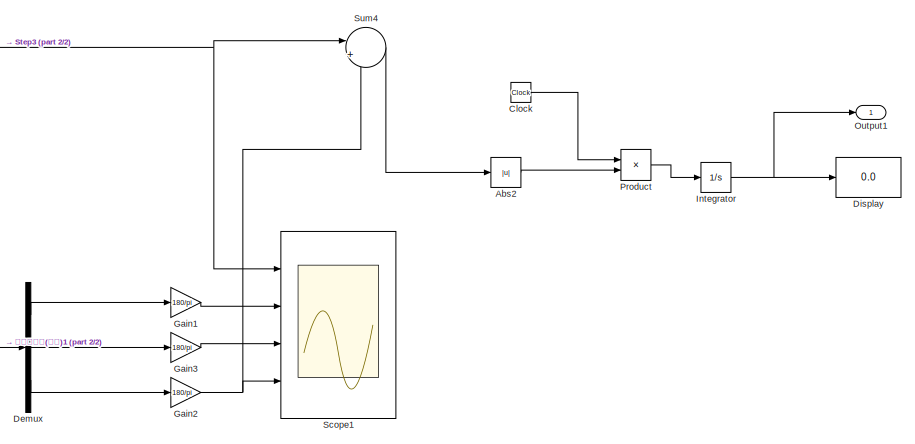
[diagram: root canvas - part 1/2, top right region]
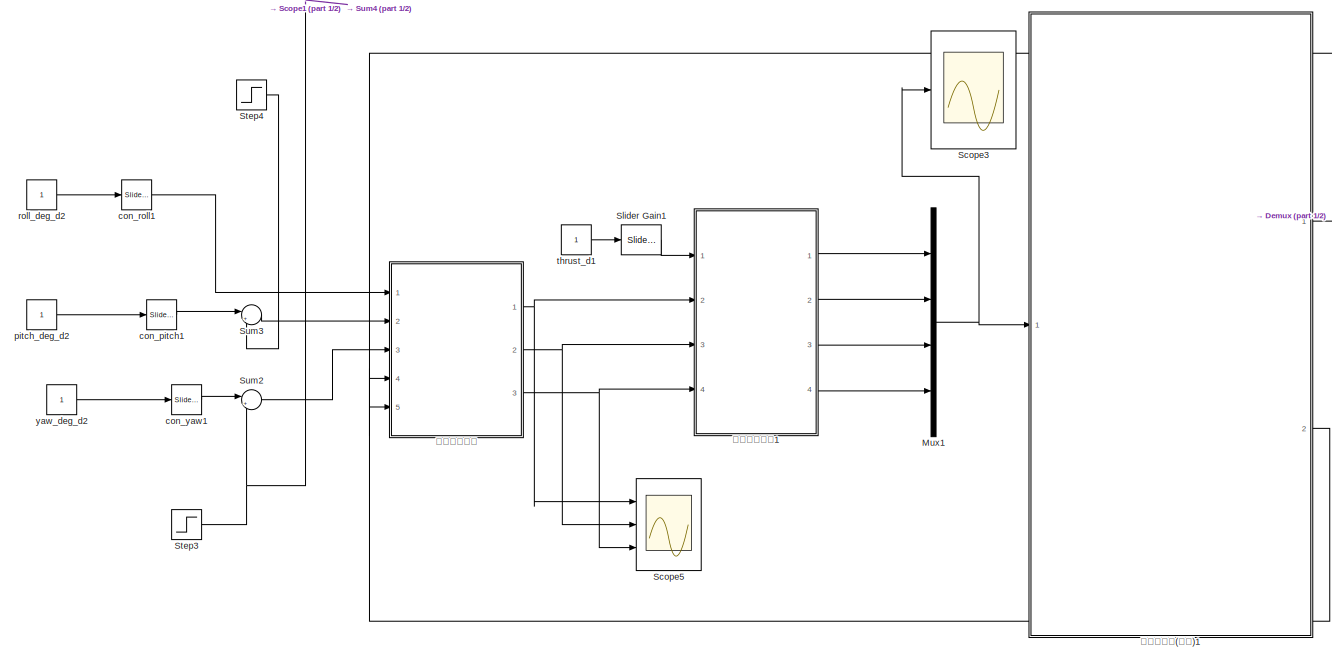
[diagram: root canvas - part 2/2, left side, full height]
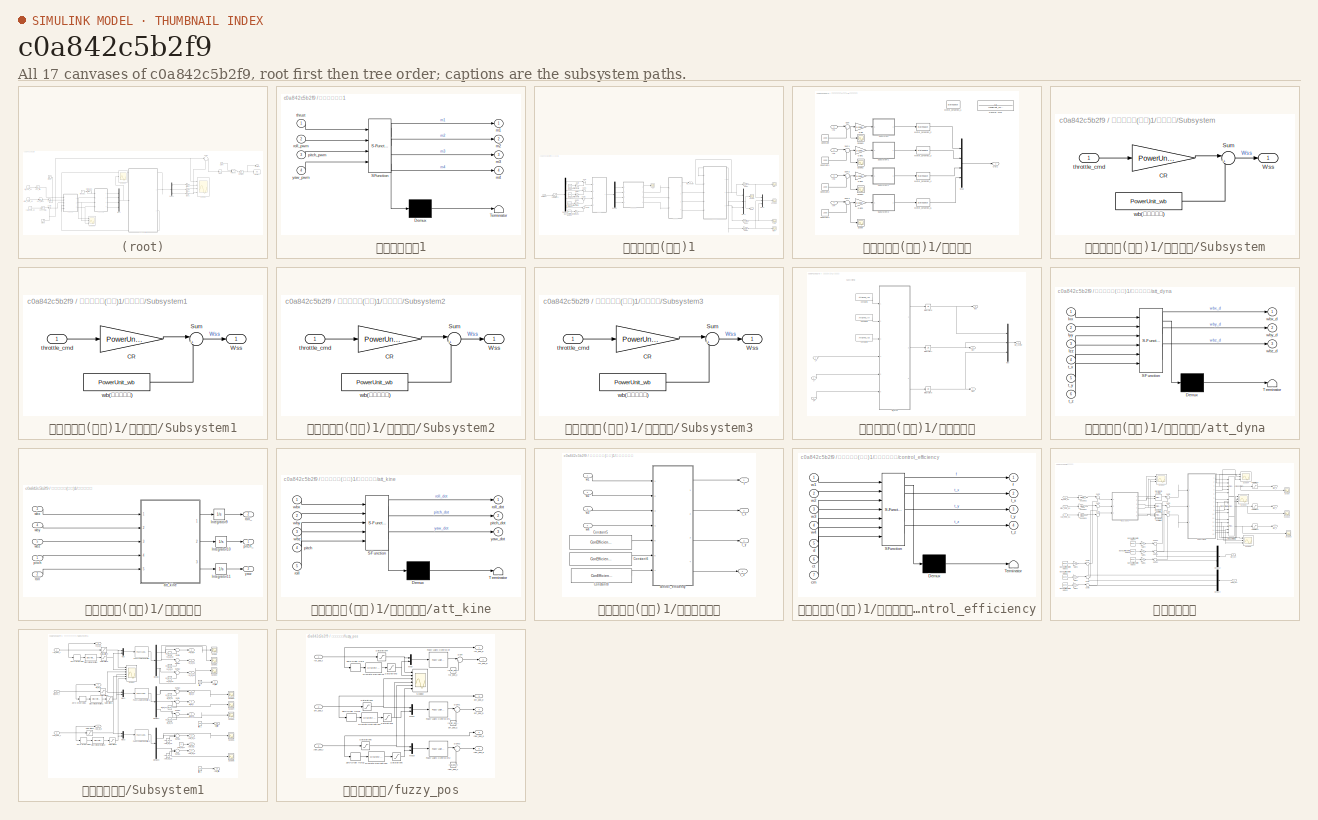
[diagram: thumbnail index - all 17 canvases of the model, root first then tree order]
MODEL slx_c0a842c5b2f9
KIND model
CONFIG AbsTol = auto
CONFIG EnableMultiTasking = off
CONFIG FixedStep = 0.005
CONFIG MaxStep = auto
CONFIG MinStep = auto
CONFIG RelTol = 1e-3
CONFIG SampleTimeConstraint = Unconstrained
CONFIG SolverName = FixedStepAuto
CONFIG StartTime = 0.0
CONFIG StopTime = 8
BLOCK [Abs] Abs2
  SaturateOnIntegerOverflow = off
BLOCK [Clock] Clock
  Decimation = 20
BLOCK [Demux] Demux
  Outputs = 3
  Ports = [1, 3]
BLOCK [Display] Display
  Decimation = 1
  Ports = [1]
BLOCK [Gain] Gain1
  Gain = 180/pi
BLOCK [Gain] Gain2
  Gain = 180/pi
BLOCK [Gain] Gain3
  Gain = 180/pi
BLOCK [Integrator] Integrator
  Ports = [1, 1]
BLOCK [Mux] Mux1
  DisplayOption = bar
  Ports = [4, 1]
BLOCK [Outport] Output1
BLOCK [Product] Product
  Ports = [2, 1]
BLOCK [Scope] Scope1
  Floating = off
  NumInputPorts = 4
  Ports = [4]
  ScopeSpecificationString = Simulink.scopes.TimeScopeBlockCfg('CurrentConfiguration', extmgr.ConfigurationSet(extmgr.Configuration('Core','General UI',true),extmgr.Configuration('Core','Source UI',true),extmgr.Configuration('Sources','WiredSimulink',true,'DataLoggingVariableName','ScopeData1'),extmgr.Configuration('Visuals','Time Domain',true,'SerializedDisplays',{struct('MinYLimReal','3.87511','MaxYLimReal','4.36641','YLabe...<+1635ch>
BLOCK [Scope] Scope3
  Floating = off
  NumInputPorts = 1
  Ports = [1]
  ScopeSpecificationString = Simulink.scopes.TimeScopeBlockCfg('CurrentConfiguration', extmgr.ConfigurationSet(extmgr.Configuration('Core','General UI',true),extmgr.Configuration('Core','Source UI',true),extmgr.Configuration('Sources','WiredSimulink',true,'DataLoggingVariableName','ScopeData2'),extmgr.Configuration('Visuals','Time Domain',true,'SerializedDisplays',{struct('MinYLimReal','359.00000','MaxYLimReal','2859.00000','...<+1515ch>
BLOCK [Scope] Scope5
  Floating = off
  NumInputPorts = 3
  Ports = [3]
  ScopeSpecificationString = Simulink.scopes.TimeScopeBlockCfg('CurrentConfiguration', extmgr.ConfigurationSet(extmgr.Configuration('Core','General UI',true),extmgr.Configuration('Core','Source UI',true),extmgr.Configuration('Sources','WiredSimulink',true,'DataLoggingVariableName','ScopeData8'),extmgr.Configuration('Visuals','Time Domain',true,'SerializedDisplays',{struct('MinYLimReal','-0.64034','MaxYLimReal','1.18226','YLab...<+1484ch>
BLOCK [Reference] Slider Gain1  REF=simulink/Math
Operations/Slider
Gain
  Ports = [1, 1]
  SourceBlock = simulink/Math\nOperations/Slider\nGain
  SourceProductBaseCode = SL
  SourceType = Slider Gain
BLOCK [Step] Step3
  After = 3
  SampleTime = 0
BLOCK [Step] Step4
  After = 6
  SampleTime = 0
  Time = 5
BLOCK [Sum] Sum2
  Inputs = |++
  Ports = [2, 1]
BLOCK [Sum] Sum3
  Inputs = |++
  Ports = [2, 1]
BLOCK [Sum] Sum4
  Inputs = |+-
  Ports = [2, 1]
BLOCK [Reference] con_pitch1  REF=simulink/Math
Operations/Slider
Gain
  Ports = [1, 1]
  SourceBlock = simulink/Math\nOperations/Slider\nGain
  SourceProductBaseCode = SL
  SourceType = Slider Gain
BLOCK [Reference] con_roll1  REF=simulink/Math
Operations/Slider
Gain
  Ports = [1, 1]
  SourceBlock = simulink/Math\nOperations/Slider\nGain
  SourceProductBaseCode = SL
  SourceType = Slider Gain
BLOCK [Reference] con_yaw1  REF=simulink/Math
Operations/Slider
Gain
  Ports = [1, 1]
  SourceBlock = simulink/Math\nOperations/Slider\nGain
  SourceProductBaseCode = SL
  SourceType = Slider Gain
BLOCK [Constant] pitch_deg_d2
BLOCK [Constant] roll_deg_d2
BLOCK [Constant] thrust_d1
BLOCK [Constant] yaw_deg_d2
BLOCK [SubSystem] 动力电机分配1
  ErrorFcn = Stateflow.Translate.translate
  PermitHierarchicalResolution = ExplicitOnly
  Ports = [4, 4]
  RequestExecContextInheritance = off
  SFBlockType = MATLAB Function
  TreatAsAtomicUnit = on
BLOCK [Demux] 动力电机分配1/ Demux 
  Outputs = 1
  Ports = [1, 1]
BLOCK [S-Function] 动力电机分配1/ SFunction 
  EnableBusSupport = on
  FunctionName = sf_sfun
  PortCounts = [4 5]
  Ports = [4, 5]
  SFcnIsStateOwnerBlock = off
  SFunctionDeploymentMode = off
  Tag = Stateflow S-Function 2
BLOCK [Terminator] 动力电机分配1/ Terminator 
BLOCK [Outport] 动力电机分配1/m1
  VectorParamsAs1DForOutWhenUnconnected = off
BLOCK [Outport] 动力电机分配1/m2
  Port = 2
  VectorParamsAs1DForOutWhenUnconnected = off
BLOCK [Outport] 动力电机分配1/m3
  Port = 3
  VectorParamsAs1DForOutWhenUnconnected = off
BLOCK [Outport] 动力电机分配1/m4
  Port = 4
  VectorParamsAs1DForOutWhenUnconnected = off
BLOCK [Inport] 动力电机分配1/pitch_pwm
  Port = 3
BLOCK [Inport] 动力电机分配1/roll_pwm
  Port = 2
BLOCK [Inport] 动力电机分配1/thrust
BLOCK [Inport] 动力电机分配1/yaw_pwm
  Port = 4
BLOCK [SubSystem] 四旋翼模型(简化)1
  Ports = [1, 2]
  RequestExecContextInheritance = off
BLOCK [Reference] 四旋翼模型(简化)1/Band-Limited White Noise  REF=simulink/Sources/Band-Limited
White Noise
  Ports = [0, 1]
  SourceBlock = simulink/Sources/Band-Limited\nWhite Noise
  SourceProductBaseCode = SL
  SourceType = Band-Limited White Noise.
BLOCK [Reference] 四旋翼模型(简化)1/Band-Limited White Noise1  REF=simulink/Sources/Band-Limited
White Noise
  Ports = [0, 1]
  SourceBlock = simulink/Sources/Band-Limited\nWhite Noise
  SourceProductBaseCode = SL
  SourceType = Band-Limited White Noise.
BLOCK [Reference] 四旋翼模型(简化)1/Band-Limited White Noise2  REF=simulink/Sources/Band-Limited
White Noise
  Ports = [0, 1]
  SourceBlock = simulink/Sources/Band-Limited\nWhite Noise
  SourceProductBaseCode = SL
  SourceType = Band-Limited White Noise.
BLOCK [Reference] 四旋翼模型(简化)1/Band-Limited White Noise3  REF=simulink/Sources/Band-Limited
White Noise
  Ports = [0, 1]
  SourceBlock = simulink/Sources/Band-Limited\nWhite Noise
  SourceProductBaseCode = SL
  SourceType = Band-Limited White Noise.
BLOCK [Demux] 四旋翼模型(简化)1/Demux
  Ports = [1, 4]
BLOCK [Demux] 四旋翼模型(简化)1/Demux3
  Ports = [1, 4]
BLOCK [Outport] 四旋翼模型(简化)1/Euler
  VectorParamsAs1DForOutWhenUnconnected = off
BLOCK [Gain] 四旋翼模型(简化)1/Gain
  Gain = 30
BLOCK [Gain] 四旋翼模型(简化)1/Gain1
  Gain = 30
BLOCK [Gain] 四旋翼模型(简化)1/Gain2
  Gain = 180/pi
BLOCK [Gain] 四旋翼模型(简化)1/Gain3
  Gain = 180/pi
BLOCK [Gain] 四旋翼模型(简化)1/Gain4
  Gain = 180/pi
BLOCK [Gain] 四旋翼模型(简化)1/Gain5
  Gain = 30
BLOCK [Gain] 四旋翼模型(简化)1/Gain6
  Gain = 30
BLOCK [Mux] 四旋翼模型(简化)1/Mux1
  DisplayOption = bar
  Inputs = 3
  Ports = [3, 1]
BLOCK [Mux] 四旋翼模型(简化)1/Mux2
  DisplayOption = bar
  Inputs = 3
  Ports = [3, 1]
BLOCK [Inport] 四旋翼模型(简化)1/PWM(1-4)
BLOCK [Saturate] 四旋翼模型(简化)1/Saturation1
  LowerLimit = 1000
  UpperLimit = 2000
BLOCK [Scope] 四旋翼模型(简化)1/Scope
  Floating = off
  NumInputPorts = 1
  Ports = [1]
  ScopeSpecificationString = Simulink.scopes.TimeScopeBlockCfg('CurrentConfiguration', extmgr.ConfigurationSet(extmgr.Configuration('Core','General UI',true),extmgr.Configuration('Core','Source UI',true),extmgr.Configuration('Sources','WiredSimulink',true,'DataLoggingVariableName','ScopeData3'),extmgr.Configuration('Visuals','Time Domain',true,'SerializedDisplays',{struct('MinYLimReal','-0.00218','MaxYLimReal','0.01963','YLab...<+1426ch>
BLOCK [Scope] 四旋翼模型(简化)1/Scope1
  Floating = off
  NumInputPorts = 1
  Ports = [1]
  ScopeSpecificationString = Simulink.scopes.TimeScopeBlockCfg('CurrentConfiguration', extmgr.ConfigurationSet(extmgr.Configuration('Core','General UI',true),extmgr.Configuration('Core','Source UI',true),extmgr.Configuration('Sources','WiredSimulink',true,'DataLoggingVariableName','ScopeData4'),extmgr.Configuration('Visuals','Time Domain',true,'SerializedDisplays',{struct('MinYLimReal','-148.18528','MaxYLimReal','529.49986','...<+1440ch>
BLOCK [Sum] 四旋翼模型(简化)1/Sum
  Inputs = |++
  Ports = [2, 1]
BLOCK [Sum] 四旋翼模型(简化)1/Sum1
  Inputs = |++
  Ports = [2, 1]
BLOCK [Sum] 四旋翼模型(简化)1/Sum2
  Inputs = |++
  Ports = [2, 1]
BLOCK [Sum] 四旋翼模型(简化)1/Sum3
  Inputs = |++
  Ports = [2, 1]
BLOCK [Scope] 四旋翼模型(简化)1/f_b
  Floating = off
  NumInputPorts = 1
  Ports = [1]
  ScopeSpecificationString = Simulink.scopes.TimeScopeBlockCfg('CurrentConfiguration', extmgr.ConfigurationSet(extmgr.Configuration('Core','General UI',true),extmgr.Configuration('Core','Source UI',true),extmgr.Configuration('Sources','WiredSimulink',true,'DataLoggingVariableName','ScopeData1'),extmgr.Configuration('Visuals','Time Domain',true,'SerializedDisplays',{struct('MinYLimReal','-1.00000','MaxYLimReal','1.00000','YLab...<+1389ch>
BLOCK [Scope] 四旋翼模型(简化)1/pitch
  Floating = off
  NumInputPorts = 1
  Ports = [1]
  ScopeSpecificationString = Simulink.scopes.TimeScopeBlockCfg('CurrentConfiguration', extmgr.ConfigurationSet(extmgr.Configuration('Core','General UI',true),extmgr.Configuration('Core','Source UI',true),extmgr.Configuration('Sources','WiredSimulink',true,'DataLoggingVariableName','ScopeData2'),extmgr.Configuration('Visuals','Time Domain',true,'SerializedDisplays',{struct('MinYLimReal','-1.00000','MaxYLimReal','1.00000','YLab...<+1364ch>
BLOCK [Scope] 四旋翼模型(简化)1/roll
  Floating = off
  NumInputPorts = 1
  Ports = [1]
  ScopeSpecificationString = Simulink.scopes.TimeScopeBlockCfg('CurrentConfiguration', extmgr.ConfigurationSet(extmgr.Configuration('Core','General UI',true),extmgr.Configuration('Core','Source UI',true),extmgr.Configuration('Sources','WiredSimulink',true,'DataLoggingVariableName','ScopeData3'),extmgr.Configuration('Visuals','Time Domain',true,'SerializedDisplays',{struct('MinYLimReal','-1.00000','MaxYLimReal','1.00000','YLab...<+1389ch>
BLOCK [Outport] 四旋翼模型(简化)1/wb_vector
  NameLocation = top
  Port = 2
  VectorParamsAs1DForOutWhenUnconnected = off
BLOCK [Scope] 四旋翼模型(简化)1/yaw
  Floating = off
  NumInputPorts = 1
  Ports = [1]
  ScopeSpecificationString = Simulink.scopes.TimeScopeBlockCfg('CurrentConfiguration', extmgr.ConfigurationSet(extmgr.Configuration('Core','General UI',true),extmgr.Configuration('Core','Source UI',true),extmgr.Configuration('Sources','WiredSimulink',true,'DataLoggingVariableName','ScopeData6'),extmgr.Configuration('Visuals','Time Domain',true,'SerializedDisplays',{struct('MinYLimReal','-0.125','MaxYLimReal','1.125','YLabelRe...<+1352ch>
BLOCK [SubSystem] 四旋翼模型(简化)1/动力模型
  Ports = [4, 1]
  RequestExecContextInheritance = off
BLOCK [Constant] 四旋翼模型(简化)1/动力模型/Constant
  Value = 1000
BLOCK [Constant] 四旋翼模型(简化)1/动力模型/Constant1
  Value = 1000
BLOCK [Constant] 四旋翼模型(简化)1/动力模型/Constant2
  Value = 1000
BLOCK [Constant] 四旋翼模型(简化)1/动力模型/Constant3
  Value = 1000
BLOCK [Gain] 四旋翼模型(简化)1/动力模型/Gain
  Gain = 1/1000
BLOCK [Gain] 四旋翼模型(简化)1/动力模型/Gain1
  Gain = 1/1000
BLOCK [Gain] 四旋翼模型(简化)1/动力模型/Gain2
  Gain = 1/1000
BLOCK [Gain] 四旋翼模型(简化)1/动力模型/Gain3
  Gain = 1/1000
BLOCK [Inport] 四旋翼模型(简化)1/动力模型/In1
BLOCK [Inport] 四旋翼模型(简化)1/动力模型/In2
  Port = 2
BLOCK [Inport] 四旋翼模型(简化)1/动力模型/In3
  Port = 3
BLOCK [Inport] 四旋翼模型(简化)1/动力模型/In4
  Port = 4
BLOCK [StateSpace] 四旋翼模型(简化)1/动力模型/Motor_Dynamics_1
  A = -1/PowerUnit_Tm
  C = 1/PowerUnit_Tm
  Commented = on
  D = 0
  InitialCondition = 557.142*PowerUnit_Tm
  Ports = [1, 1]
BLOCK [StateSpace] 四旋翼模型(简化)1/动力模型/Motor_Dynamics_2
  A = -1/PowerUnit_Tm
  C = 1/PowerUnit_Tm
  D = 0
  InitialCondition = 557.142*PowerUnit_Tm
  Ports = [1, 1]
BLOCK [StateSpace] 四旋翼模型(简化)1/动力模型/Motor_Dynamics_3
  A = -1/PowerUnit_Tm
  C = 1/PowerUnit_Tm
  D = 0
  InitialCondition = 557.142*PowerUnit_Tm
  Ports = [1, 1]
BLOCK [StateSpace] 四旋翼模型(简化)1/动力模型/Motor_Dynamics_4
  A = -1/PowerUnit_Tm
  C = 1/PowerUnit_Tm
  D = 0
  InitialCondition = 557.142*PowerUnit_Tm
  Ports = [1, 1]
BLOCK [StateSpace] 四旋翼模型(简化)1/动力模型/Motor_Dynamics_5
  A = -1/PowerUnit_Tm
  C = 1/PowerUnit_Tm
  D = 0
  InitialCondition = 557.142*PowerUnit_Tm
  Ports = [1, 1]
BLOCK [Mux] 四旋翼模型(简化)1/动力模型/Mux
  DisplayOption = bar
  Ports = [4, 1]
BLOCK [Outport] 四旋翼模型(简化)1/动力模型/Out1
  VectorParamsAs1DForOutWhenUnconnected = off
BLOCK [Scope] 四旋翼模型(简化)1/动力模型/Scope
  Floating = off
  NumInputPorts = 1
  Ports = [1]
  ScopeSpecificationString = Simulink.scopes.TimeScopeBlockCfg('CurrentConfiguration', extmgr.ConfigurationSet(extmgr.Configuration('Core','General UI',true),extmgr.Configuration('Core','Source UI',true),extmgr.Configuration('Sources','WiredSimulink',true,'DataLoggingVariableName','ScopeData22'),extmgr.Configuration('Visuals','Time Domain',true,'SerializedDisplays',{struct('MinYLimReal','-174.17434','MaxYLimReal','1075.82566'...<+1382ch>
BLOCK [Scope] 四旋翼模型(简化)1/动力模型/Scope1
  Floating = off
  NumInputPorts = 1
  Ports = [1]
  ScopeSpecificationString = Simulink.scopes.TimeScopeBlockCfg('CurrentConfiguration', extmgr.ConfigurationSet(extmgr.Configuration('Core','General UI',true),extmgr.Configuration('Core','Source UI',true),extmgr.Configuration('Sources','WiredSimulink',true,'DataLoggingVariableName','ScopeData23'),extmgr.Configuration('Visuals','Time Domain',true,'SerializedDisplays',{struct('MinYLimReal','-4.39206','MaxYLimReal','1056.96096','...<+1376ch>
BLOCK [Scope] 四旋翼模型(简化)1/动力模型/Scope2
  Floating = off
  NumInputPorts = 1
  Ports = [1]
  ScopeSpecificationString = Simulink.scopes.TimeScopeBlockCfg('CurrentConfiguration', extmgr.ConfigurationSet(extmgr.Configuration('Core','General UI',true),extmgr.Configuration('Core','Source UI',true),extmgr.Configuration('Sources','WiredSimulink',true,'DataLoggingVariableName','ScopeData24'),extmgr.Configuration('Visuals','Time Domain',true,'SerializedDisplays',{struct('MinYLimReal','-174.17434','MaxYLimReal','1075.82566'...<+1382ch>
BLOCK [Scope] 四旋翼模型(简化)1/动力模型/Scope3
  Floating = off
  NumInputPorts = 1
  Ports = [1]
  ScopeSpecificationString = Simulink.scopes.TimeScopeBlockCfg('CurrentConfiguration', extmgr.ConfigurationSet(extmgr.Configuration('Core','General UI',true),extmgr.Configuration('Core','Source UI',true),extmgr.Configuration('Sources','WiredSimulink',true,'DataLoggingVariableName','ScopeData25'),extmgr.Configuration('Visuals','Time Domain',true,'SerializedDisplays',{struct('MinYLimReal','-4.39206','MaxYLimReal','1056.96096','...<+1375ch>
BLOCK [SubSystem] 四旋翼模型(简化)1/动力模型/Subsystem
  Ports = [1, 1]
  RequestExecContextInheritance = off
BLOCK [Gain] 四旋翼模型(简化)1/动力模型/Subsystem/CR
  Gain = PowerUnit_CR
BLOCK [Sum] 四旋翼模型(简化)1/动力模型/Subsystem/Sum
  Inputs = |++
  Ports = [2, 1]
BLOCK [Outport] 四旋翼模型(简化)1/动力模型/Subsystem/Wss
  VectorParamsAs1DForOutWhenUnconnected = off
BLOCK [Inport] 四旋翼模型(简化)1/动力模型/Subsystem/throttle_cmd 
BLOCK [Constant] 四旋翼模型(简化)1/动力模型/Subsystem/wb(转速常参数)
  Value = PowerUnit_wb
BLOCK [SubSystem] 四旋翼模型(简化)1/动力模型/Subsystem1
  Ports = [1, 1]
  RequestExecContextInheritance = off
BLOCK [Gain] 四旋翼模型(简化)1/动力模型/Subsystem1/CR
  Gain = PowerUnit_CR
BLOCK [Sum] 四旋翼模型(简化)1/动力模型/Subsystem1/Sum
  Inputs = |++
  Ports = [2, 1]
BLOCK [Outport] 四旋翼模型(简化)1/动力模型/Subsystem1/Wss
  VectorParamsAs1DForOutWhenUnconnected = off
BLOCK [Inport] 四旋翼模型(简化)1/动力模型/Subsystem1/throttle_cmd 
BLOCK [Constant] 四旋翼模型(简化)1/动力模型/Subsystem1/wb(转速常参数)
  Value = PowerUnit_wb
BLOCK [SubSystem] 四旋翼模型(简化)1/动力模型/Subsystem2
  Ports = [1, 1]
  RequestExecContextInheritance = off
BLOCK [Gain] 四旋翼模型(简化)1/动力模型/Subsystem2/CR
  Gain = PowerUnit_CR
BLOCK [Sum] 四旋翼模型(简化)1/动力模型/Subsystem2/Sum
  Inputs = |++
  Ports = [2, 1]
BLOCK [Outport] 四旋翼模型(简化)1/动力模型/Subsystem2/Wss
  VectorParamsAs1DForOutWhenUnconnected = off
BLOCK [Inport] 四旋翼模型(简化)1/动力模型/Subsystem2/throttle_cmd 
BLOCK [Constant] 四旋翼模型(简化)1/动力模型/Subsystem2/wb(转速常参数)
  Value = PowerUnit_wb
BLOCK [SubSystem] 四旋翼模型(简化)1/动力模型/Subsystem3
  Ports = [1, 1]
  RequestExecContextInheritance = off
BLOCK [Gain] 四旋翼模型(简化)1/动力模型/Subsystem3/CR
  Gain = PowerUnit_CR
BLOCK [Sum] 四旋翼模型(简化)1/动力模型/Subsystem3/Sum
  Inputs = |++
  Ports = [2, 1]
BLOCK [Outport] 四旋翼模型(简化)1/动力模型/Subsystem3/Wss
  VectorParamsAs1DForOutWhenUnconnected = off
BLOCK [Inport] 四旋翼模型(简化)1/动力模型/Subsystem3/throttle_cmd 
BLOCK [Constant] 四旋翼模型(简化)1/动力模型/Subsystem3/wb(转速常参数)
  Value = PowerUnit_wb
BLOCK [Sum] 四旋翼模型(简化)1/动力模型/Sum
  Inputs = |+-
  Ports = [2, 1]
BLOCK [Sum] 四旋翼模型(简化)1/动力模型/Sum1
  Inputs = |+-
  Ports = [2, 1]
BLOCK [Sum] 四旋翼模型(简化)1/动力模型/Sum2
  Inputs = |+-
  Ports = [2, 1]
BLOCK [Sum] 四旋翼模型(简化)1/动力模型/Sum3
  Inputs = |+-
  Ports = [2, 1]
BLOCK [TransferFcn] 四旋翼模型(简化)1/动力模型/Transfer Fcn5
  Commented = on
  Denominator = [PowerUnit_Tm 1]
BLOCK [SubSystem] 四旋翼模型(简化)1/姿态动力学
  Ports = [3, 4]
  RequestExecContextInheritance = off
BLOCK [Constant] 四旋翼模型(简化)1/姿态动力学/Constant1
  Value = AttDyna_Ixx
BLOCK [Constant] 四旋翼模型(简化)1/姿态动力学/Constant2
  Value = AttDyna_Izz
BLOCK [Constant] 四旋翼模型(简化)1/姿态动力学/Constant4
  Value = AttDyna_Iyy
BLOCK [Integrator] 四旋翼模型(简化)1/姿态动力学/Integrator6
  Ports = [1, 1]
BLOCK [Integrator] 四旋翼模型(简化)1/姿态动力学/Integrator7
  Ports = [1, 1]
BLOCK [Integrator] 四旋翼模型(简化)1/姿态动力学/Integrator8
  Ports = [1, 1]
BLOCK [Mux] 四旋翼模型(简化)1/姿态动力学/Mux
  DisplayOption = bar
  Inputs = 3
  Ports = [3, 1]
BLOCK [SubSystem] 四旋翼模型(简化)1/姿态动力学/att_dyna
  ErrorFcn = Stateflow.Translate.translate
  PermitHierarchicalResolution = ExplicitOnly
  Ports = [6, 3]
  RequestExecContextInheritance = off
  SFBlockType = MATLAB Function
  TreatAsAtomicUnit = on
BLOCK [Demux] 四旋翼模型(简化)1/姿态动力学/att_dyna/ Demux 
  Outputs = 1
  Ports = [1, 1]
BLOCK [S-Function] 四旋翼模型(简化)1/姿态动力学/att_dyna/ SFunction 
  EnableBusSupport = on
  FunctionName = sf_sfun
  PortCounts = [6 4]
  Ports = [6, 4]
  SFcnIsStateOwnerBlock = off
  SFunctionDeploymentMode = off
  Tag = Stateflow S-Function 6
BLOCK [Terminator] 四旋翼模型(简化)1/姿态动力学/att_dyna/ Terminator 
BLOCK [Inport] 四旋翼模型(简化)1/姿态动力学/att_dyna/Ixx
BLOCK [Inport] 四旋翼模型(简化)1/姿态动力学/att_dyna/Iyy
  Port = 2
BLOCK [Inport] 四旋翼模型(简化)1/姿态动力学/att_dyna/Izz
  Port = 3
BLOCK [Inport] 四旋翼模型(简化)1/姿态动力学/att_dyna/t_x
  Port = 4
BLOCK [Inport] 四旋翼模型(简化)1/姿态动力学/att_dyna/t_y
  Port = 5
BLOCK [Inport] 四旋翼模型(简化)1/姿态动力学/att_dyna/t_z
  Port = 6
BLOCK [Outport] 四旋翼模型(简化)1/姿态动力学/att_dyna/wbx_d
  VectorParamsAs1DForOutWhenUnconnected = off
BLOCK [Outport] 四旋翼模型(简化)1/姿态动力学/att_dyna/wby_d
  Port = 2
  VectorParamsAs1DForOutWhenUnconnected = off
BLOCK [Outport] 四旋翼模型(简化)1/姿态动力学/att_dyna/wbz_d
  Port = 3
  VectorParamsAs1DForOutWhenUnconnected = off
BLOCK [Inport] 四旋翼模型(简化)1/姿态动力学/t_x
BLOCK [Inport] 四旋翼模型(简化)1/姿态动力学/t_y
  Port = 2
BLOCK [Inport] 四旋翼模型(简化)1/姿态动力学/t_z
  Port = 3
BLOCK [Outport] 四旋翼模型(简化)1/姿态动力学/wb_vector
  VectorParamsAs1DForOutWhenUnconnected = off
BLOCK [Outport] 四旋翼模型(简化)1/姿态动力学/wbx
  Port = 2
  VectorParamsAs1DForOutWhenUnconnected = off
BLOCK [Outport] 四旋翼模型(简化)1/姿态动力学/wby
  Port = 3
  VectorParamsAs1DForOutWhenUnconnected = off
BLOCK [Outport] 四旋翼模型(简化)1/姿态动力学/wbz
  Port = 4
  VectorParamsAs1DForOutWhenUnconnected = off
BLOCK [SubSystem] 四旋翼模型(简化)1/姿态运动学
  Ports = [5, 3]
  RequestExecContextInheritance = off
BLOCK [Integrator] 四旋翼模型(简化)1/姿态运动学/Integrator10
  Ports = [1, 1]
BLOCK [Integrator] 四旋翼模型(简化)1/姿态运动学/Integrator11
  Ports = [1, 1]
BLOCK [Integrator] 四旋翼模型(简化)1/姿态运动学/Integrator9
  Ports = [1, 1]
BLOCK [SubSystem] 四旋翼模型(简化)1/姿态运动学/att_kine
  ErrorFcn = Stateflow.Translate.translate
  PermitHierarchicalResolution = ExplicitOnly
  Ports = [5, 3]
  RequestExecContextInheritance = off
  SFBlockType = MATLAB Function
  TreatAsAtomicUnit = on
BLOCK [Demux] 四旋翼模型(简化)1/姿态运动学/att_kine/ Demux 
  Outputs = 1
  Ports = [1, 1]
BLOCK [S-Function] 四旋翼模型(简化)1/姿态运动学/att_kine/ SFunction 
  EnableBusSupport = on
  FunctionName = sf_sfun
  PortCounts = [5 4]
  Ports = [5, 4]
  SFcnIsStateOwnerBlock = off
  SFunctionDeploymentMode = off
  Tag = Stateflow S-Function 7
BLOCK [Terminator] 四旋翼模型(简化)1/姿态运动学/att_kine/ Terminator 
BLOCK [Inport] 四旋翼模型(简化)1/姿态运动学/att_kine/pitch
  Port = 4
BLOCK [Outport] 四旋翼模型(简化)1/姿态运动学/att_kine/pitch_dot
  Port = 2
  VectorParamsAs1DForOutWhenUnconnected = off
BLOCK [Inport] 四旋翼模型(简化)1/姿态运动学/att_kine/roll
  Port = 5
BLOCK [Outport] 四旋翼模型(简化)1/姿态运动学/att_kine/roll_dot
  VectorParamsAs1DForOutWhenUnconnected = off
BLOCK [Inport] 四旋翼模型(简化)1/姿态运动学/att_kine/wbx
BLOCK [Inport] 四旋翼模型(简化)1/姿态运动学/att_kine/wby
  Port = 2
BLOCK [Inport] 四旋翼模型(简化)1/姿态运动学/att_kine/wbz
  Port = 3
BLOCK [Outport] 四旋翼模型(简化)1/姿态运动学/att_kine/yaw_dot
  Port = 3
  VectorParamsAs1DForOutWhenUnconnected = off
BLOCK [Inport] 四旋翼模型(简化)1/姿态运动学/pitch
  NameLocation = top
BLOCK [Outport] 四旋翼模型(简化)1/姿态运动学/pitch_
  VectorParamsAs1DForOutWhenUnconnected = off
BLOCK [Inport] 四旋翼模型(简化)1/姿态运动学/roll
  Port = 2
BLOCK [Outport] 四旋翼模型(简化)1/姿态运动学/roll_
  Port = 2
  VectorParamsAs1DForOutWhenUnconnected = off
BLOCK [Inport] 四旋翼模型(简化)1/姿态运动学/wbx
  Port = 3
BLOCK [Inport] 四旋翼模型(简化)1/姿态运动学/wby
  Port = 4
BLOCK [Inport] 四旋翼模型(简化)1/姿态运动学/wbz
  Port = 5
BLOCK [Outport] 四旋翼模型(简化)1/姿态运动学/yaw
  Port = 3
  VectorParamsAs1DForOutWhenUnconnected = off
BLOCK [SubSystem] 四旋翼模型(简化)1/控制效率模型
  Ports = [4, 4]
  RequestExecContextInheritance = off
BLOCK [Constant] 四旋翼模型(简化)1/控制效率模型/Constant5
  Value = ConEfficiency_drone_R
BLOCK [Constant] 四旋翼模型(简化)1/控制效率模型/Constant6
  Value = ConEfficiency_drone_cT
BLOCK [Constant] 四旋翼模型(简化)1/控制效率模型/Constant8
  Value = ConEfficiency_drone_cM
BLOCK [SubSystem] 四旋翼模型(简化)1/控制效率模型/control_efficiency
  ErrorFcn = Stateflow.Translate.translate
  PermitHierarchicalResolution = ExplicitOnly
  Ports = [7, 4]
  RequestExecContextInheritance = off
  SFBlockType = MATLAB Function
  TreatAsAtomicUnit = on
BLOCK [Demux] 四旋翼模型(简化)1/控制效率模型/control_efficiency/ Demux 
  Outputs = 1
  Ports = [1, 1]
BLOCK [S-Function] 四旋翼模型(简化)1/控制效率模型/control_efficiency/ SFunction 
  EnableBusSupport = on
  FunctionName = sf_sfun
  PortCounts = [7 5]
  Ports = [7, 5]
  SFcnIsStateOwnerBlock = off
  SFunctionDeploymentMode = off
  Tag = Stateflow S-Function 8
BLOCK [Terminator] 四旋翼模型(简化)1/控制效率模型/control_efficiency/ Terminator 
BLOCK [Inport] 四旋翼模型(简化)1/控制效率模型/control_efficiency/cm
  Port = 7
BLOCK [Inport] 四旋翼模型(简化)1/控制效率模型/control_efficiency/ct
  Port = 6
BLOCK [Inport] 四旋翼模型(简化)1/控制效率模型/control_efficiency/d
  Port = 5
BLOCK [Outport] 四旋翼模型(简化)1/控制效率模型/control_efficiency/f
  VectorParamsAs1DForOutWhenUnconnected = off
BLOCK [Outport] 四旋翼模型(简化)1/控制效率模型/control_efficiency/t_x
  Port = 2
  VectorParamsAs1DForOutWhenUnconnected = off
BLOCK [Outport] 四旋翼模型(简化)1/控制效率模型/control_efficiency/t_y
  Port = 3
  VectorParamsAs1DForOutWhenUnconnected = off
BLOCK [Outport] 四旋翼模型(简化)1/控制效率模型/control_efficiency/t_z
  Port = 4
  VectorParamsAs1DForOutWhenUnconnected = off
BLOCK [Inport] 四旋翼模型(简化)1/控制效率模型/control_efficiency/w1
BLOCK [Inport] 四旋翼模型(简化)1/控制效率模型/control_efficiency/w2
  Port = 2
BLOCK [Inport] 四旋翼模型(简化)1/控制效率模型/control_efficiency/w3
  Port = 3
BLOCK [Inport] 四旋翼模型(简化)1/控制效率模型/control_efficiency/w4
  Port = 4
BLOCK [Outport] 四旋翼模型(简化)1/控制效率模型/f
  VectorParamsAs1DForOutWhenUnconnected = off
BLOCK [Outport] 四旋翼模型(简化)1/控制效率模型/t_x
  Port = 2
  VectorParamsAs1DForOutWhenUnconnected = off
BLOCK [Outport] 四旋翼模型(简化)1/控制效率模型/t_y
  Port = 3
  VectorParamsAs1DForOutWhenUnconnected = off
BLOCK [Outport] 四旋翼模型(简化)1/控制效率模型/t_z
  Port = 4
  VectorParamsAs1DForOutWhenUnconnected = off
BLOCK [Inport] 四旋翼模型(简化)1/控制效率模型/w1
BLOCK [Inport] 四旋翼模型(简化)1/控制效率模型/w2
  Port = 2
BLOCK [Inport] 四旋翼模型(简化)1/控制效率模型/w3
  Port = 3
BLOCK [Inport] 四旋翼模型(简化)1/控制效率模型/w4
  Port = 4
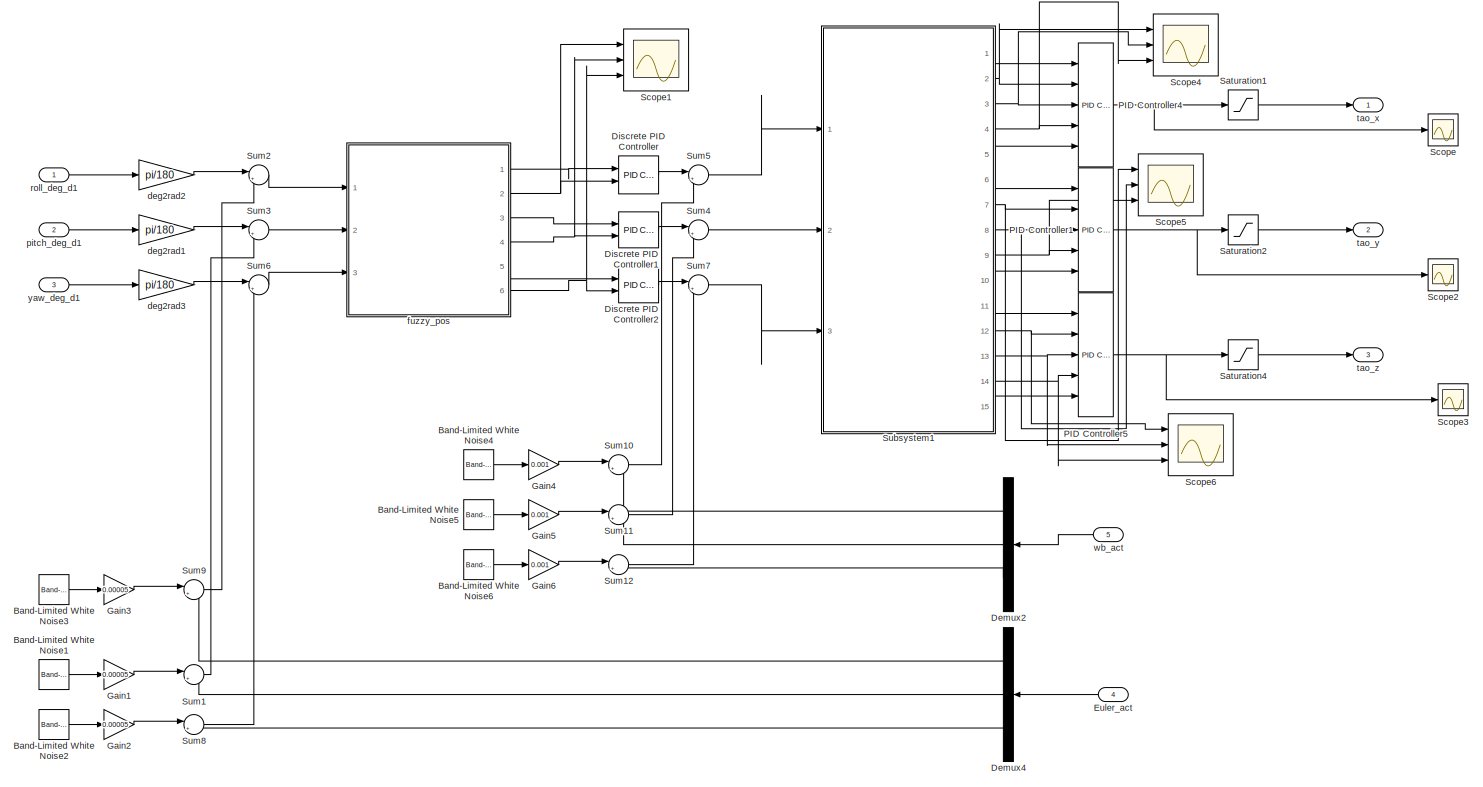
[diagram: 姿态模糊控制 - part 1/1, most of the canvas]
BLOCK [SubSystem] 姿态模糊控制
  Ports = [5, 3]
  RequestExecContextInheritance = off
BLOCK [Reference] 姿态模糊控制/Band-Limited White Noise1  REF=simulink/Sources/Band-Limited
White Noise
  Ports = [0, 1]
  SourceBlock = simulink/Sources/Band-Limited\nWhite Noise
  SourceProductBaseCode = SL
  SourceType = Band-Limited White Noise.
BLOCK [Reference] 姿态模糊控制/Band-Limited White Noise2  REF=simulink/Sources/Band-Limited
White Noise
  Ports = [0, 1]
  SourceBlock = simulink/Sources/Band-Limited\nWhite Noise
  SourceProductBaseCode = SL
  SourceType = Band-Limited White Noise.
BLOCK [Reference] 姿态模糊控制/Band-Limited White Noise3  REF=simulink/Sources/Band-Limited
White Noise
  Ports = [0, 1]
  SourceBlock = simulink/Sources/Band-Limited\nWhite Noise
  SourceProductBaseCode = SL
  SourceType = Band-Limited White Noise.
BLOCK [Reference] 姿态模糊控制/Band-Limited White Noise4  REF=simulink/Sources/Band-Limited
White Noise
  Ports = [0, 1]
  SourceBlock = simulink/Sources/Band-Limited\nWhite Noise
  SourceProductBaseCode = SL
  SourceType = Band-Limited White Noise.
BLOCK [Reference] 姿态模糊控制/Band-Limited White Noise5  REF=simulink/Sources/Band-Limited
White Noise
  Ports = [0, 1]
  SourceBlock = simulink/Sources/Band-Limited\nWhite Noise
  SourceProductBaseCode = SL
  SourceType = Band-Limited White Noise.
BLOCK [Reference] 姿态模糊控制/Band-Limited White Noise6  REF=simulink/Sources/Band-Limited
White Noise
  Ports = [0, 1]
  SourceBlock = simulink/Sources/Band-Limited\nWhite Noise
  SourceProductBaseCode = SL
  SourceType = Band-Limited White Noise.
BLOCK [Demux] 姿态模糊控制/Demux2
  NameLocation = top
  Outputs = 3
  Ports = [1, 3]
BLOCK [Demux] 姿态模糊控制/Demux4
  NameLocation = top
  Outputs = 3
  Ports = [1, 3]
BLOCK [Reference] 姿态模糊控制/Discrete PID Controller  REF=slpidlib/PID Controller
  Ports = [2, 1]
  SourceBlock = slpidlib/PID Controller
  SourceProductBaseCode = SL
  SourceType = PID 1dof
BLOCK [Reference] 姿态模糊控制/Discrete PID Controller1  REF=slpidlib/PID Controller
  Ports = [2, 1]
  SourceBlock = slpidlib/PID Controller
  SourceProductBaseCode = SL
  SourceType = PID 1dof
BLOCK [Reference] 姿态模糊控制/Discrete PID Controller2  REF=slpidlib/PID Controller
  Ports = [2, 1]
  SourceBlock = slpidlib/PID Controller
  SourceProductBaseCode = SL
  SourceType = PID 1dof
BLOCK [Inport] 姿态模糊控制/Euler_act
  NameLocation = top
  Port = 4
BLOCK [Gain] 姿态模糊控制/Gain1
  Gain = 0.00005
BLOCK [Gain] 姿态模糊控制/Gain2
  Gain = 0.00005
BLOCK [Gain] 姿态模糊控制/Gain3
  Gain = 0.00005
BLOCK [Gain] 姿态模糊控制/Gain4
  Gain = 0.001
BLOCK [Gain] 姿态模糊控制/Gain5
  Gain = 0.001
BLOCK [Gain] 姿态模糊控制/Gain6
  Gain = 0.001
BLOCK [Reference] 姿态模糊控制/PID Controller1  REF=slpidlib/PID Controller
  Ports = [5, 1]
  SourceBlock = slpidlib/PID Controller
  SourceProductBaseCode = SL
  SourceType = PID 1dof
BLOCK [Reference] 姿态模糊控制/PID Controller4  REF=slpidlib/PID Controller
  Ports = [5, 1]
  SourceBlock = slpidlib/PID Controller
  SourceProductBaseCode = SL
  SourceType = PID 1dof
BLOCK [Reference] 姿态模糊控制/PID Controller5  REF=slpidlib/PID Controller
  Ports = [5, 1]
  SourceBlock = slpidlib/PID Controller
  SourceProductBaseCode = SL
  SourceType = PID 1dof
BLOCK [Saturate] 姿态模糊控制/Saturation1
  LowerLimit = -1
  UpperLimit = 1
BLOCK [Saturate] 姿态模糊控制/Saturation2
  LowerLimit = -1
  UpperLimit = 1
BLOCK [Saturate] 姿态模糊控制/Saturation4
  LowerLimit = -1
  UpperLimit = 1
BLOCK [Scope] 姿态模糊控制/Scope
  Floating = off
  NumInputPorts = 1
  Ports = [1]
  ScopeSpecificationString = Simulink.scopes.TimeScopeBlockCfg('CurrentConfiguration', extmgr.ConfigurationSet(extmgr.Configuration('Core','General UI',true),extmgr.Configuration('Core','Source UI',true),extmgr.Configuration('Sources','WiredSimulink',true,'DataLoggingVariableName','ScopeData13'),extmgr.Configuration('Visuals','Time Domain',true,'SerializedDisplays',{struct('MinYLimReal','-0.00000000000000022','MaxYLimReal','0...<+1471ch>
BLOCK [Scope] 姿态模糊控制/Scope1
  Floating = off
  NumInputPorts = 3
  Ports = [3]
  ScopeSpecificationString = Simulink.scopes.TimeScopeBlockCfg('CurrentConfiguration', extmgr.ConfigurationSet(extmgr.Configuration('Core','General UI',true),extmgr.Configuration('Core','Source UI',true),extmgr.Configuration('Sources','WiredSimulink',true,'DataLoggingVariableName','ScopeData5'),extmgr.Configuration('Visuals','Time Domain',true,'SerializedDisplays',{struct('MinYLimReal','-2.85888','MaxYLimReal','35.72989','YLa...<+1479ch>
BLOCK [Scope] 姿态模糊控制/Scope2
  Floating = off
  NumInputPorts = 1
  Ports = [1]
  ScopeSpecificationString = Simulink.scopes.TimeScopeBlockCfg('CurrentConfiguration', extmgr.ConfigurationSet(extmgr.Configuration('Core','General UI',true),extmgr.Configuration('Core','Source UI',true),extmgr.Configuration('Sources','WiredSimulink',true,'DataLoggingVariableName','ScopeData15'),extmgr.Configuration('Visuals','Time Domain',true,'SerializedDisplays',{struct('MinYLimReal','-0.78577','MaxYLimReal','2.49108','YLa...<+1375ch>
BLOCK [Scope] 姿态模糊控制/Scope3
  Floating = off
  NumInputPorts = 1
  Ports = [1]
  ScopeSpecificationString = Simulink.scopes.TimeScopeBlockCfg('CurrentConfiguration', extmgr.ConfigurationSet(extmgr.Configuration('Core','General UI',true),extmgr.Configuration('Core','Source UI',true),extmgr.Configuration('Sources','WiredSimulink',true,'DataLoggingVariableName','ScopeData16'),extmgr.Configuration('Visuals','Time Domain',true,'SerializedDisplays',{struct('MinYLimReal','-0.0000000000000003','MaxYLimReal','0....<+1467ch>
BLOCK [Scope] 姿态模糊控制/Scope4
  Floating = off
  NumInputPorts = 3
  Ports = [3]
  ScopeSpecificationString = Simulink.scopes.TimeScopeBlockCfg('CurrentConfiguration', extmgr.ConfigurationSet(extmgr.Configuration('Core','General UI',true),extmgr.Configuration('Core','Source UI',true),extmgr.Configuration('Sources','WiredSimulink',true,'DataLoggingVariableName','ScopeData17'),extmgr.Configuration('Visuals','Time Domain',true,'SerializedDisplays',{struct('MinYLimReal','-0.16806','MaxYLimReal','1.57423','YLa...<+1538ch>
BLOCK [Scope] 姿态模糊控制/Scope5
  Floating = off
  NumInputPorts = 3
  Ports = [3]
  ScopeSpecificationString = Simulink.scopes.TimeScopeBlockCfg('CurrentConfiguration', extmgr.ConfigurationSet(extmgr.Configuration('Core','General UI',true),extmgr.Configuration('Core','Source UI',true),extmgr.Configuration('Sources','WiredSimulink',true,'DataLoggingVariableName','ScopeData18'),extmgr.Configuration('Visuals','Time Domain',true,'SerializedDisplays',{struct('MinYLimReal','-0.21946','MaxYLimReal','2.03643','YLa...<+1479ch>
BLOCK [Scope] 姿态模糊控制/Scope6
  Floating = off
  NumInputPorts = 3
  Ports = [3]
  ScopeSpecificationString = Simulink.scopes.TimeScopeBlockCfg('CurrentConfiguration', extmgr.ConfigurationSet(extmgr.Configuration('Core','General UI',true),extmgr.Configuration('Core','Source UI',true),extmgr.Configuration('Sources','WiredSimulink',true,'DataLoggingVariableName','ScopeData19'),extmgr.Configuration('Visuals','Time Domain',true,'SerializedDisplays',{struct('MinYLimReal','-2.5','MaxYLimReal','22.5','YLabelReal...<+1462ch>
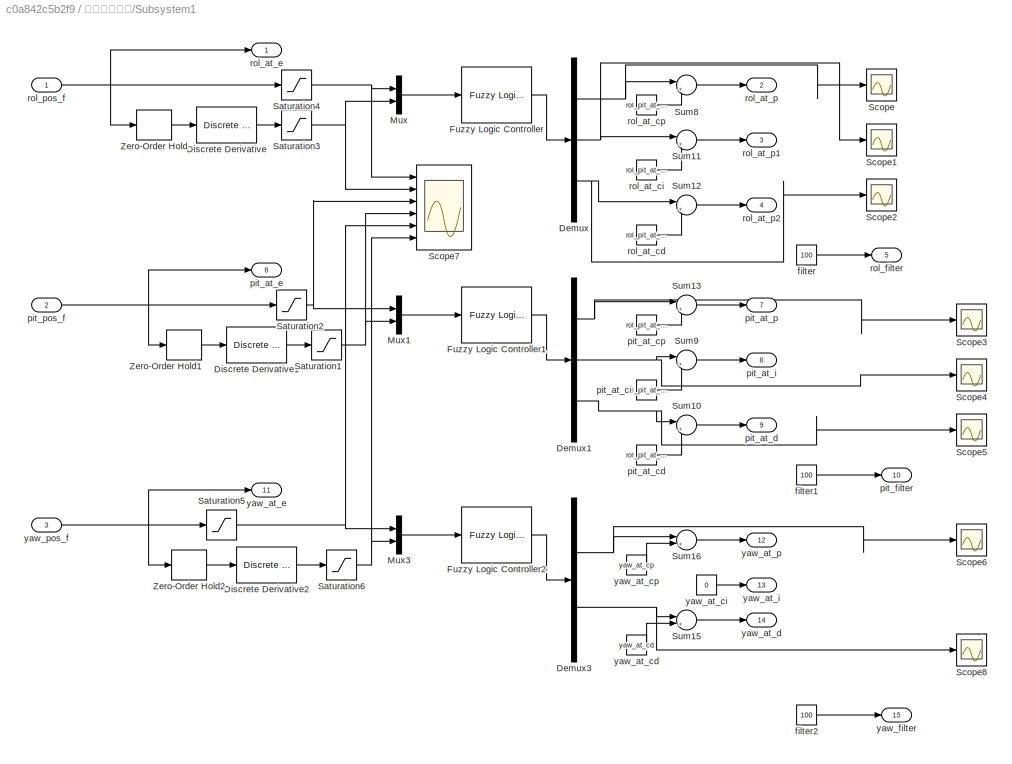
BLOCK [SubSystem] 姿态模糊控制/Subsystem1
  Ports = [3, 15]
  RequestExecContextInheritance = off
BLOCK [Demux] 姿态模糊控制/Subsystem1/Demux
  Outputs = 3
  Ports = [1, 3]
BLOCK [Demux] 姿态模糊控制/Subsystem1/Demux1
  Outputs = 3
  Ports = [1, 3]
BLOCK [Demux] 姿态模糊控制/Subsystem1/Demux3
  Outputs = 2
  Ports = [1, 2]
BLOCK [Reference] 姿态模糊控制/Subsystem1/Discrete Derivative  REF=simulink/Discrete/Discrete Derivative
  Ports = [1, 1]
  SourceBlock = simulink/Discrete/Discrete Derivative
  SourceProductBaseCode = SL
  SourceType = Discrete Derivative
BLOCK [Reference] 姿态模糊控制/Subsystem1/Discrete Derivative1  REF=simulink/Discrete/Discrete Derivative
  Ports = [1, 1]
  SourceBlock = simulink/Discrete/Discrete Derivative
  SourceProductBaseCode = SL
  SourceType = Discrete Derivative
BLOCK [Reference] 姿态模糊控制/Subsystem1/Discrete Derivative2  REF=simulink/Discrete/Discrete Derivative
  Ports = [1, 1]
  SourceBlock = simulink/Discrete/Discrete Derivative
  SourceProductBaseCode = SL
  SourceType = Discrete Derivative
BLOCK [Reference] 姿态模糊控制/Subsystem1/Fuzzy Logic Controller  REF=fuzblock/Fuzzy Logic   (lib defined in mdl_858b3b3e7478)
Controller
  Ports = [1, 1]
  SourceBlock = fuzblock/Fuzzy Logic \nController
  SourceProductBaseCode = FL
  SourceType = Fuzzy Inference System
BLOCK [Reference] 姿态模糊控制/Subsystem1/Fuzzy Logic Controller1  REF=fuzblock/Fuzzy Logic   (lib defined in mdl_858b3b3e7478)
Controller
  Ports = [1, 1]
  SourceBlock = fuzblock/Fuzzy Logic \nController
  SourceProductBaseCode = FL
  SourceType = Fuzzy Inference System
BLOCK [Reference] 姿态模糊控制/Subsystem1/Fuzzy Logic Controller2  REF=fuzblock/Fuzzy Logic   (lib defined in mdl_858b3b3e7478)
Controller
  Ports = [1, 1]
  SourceBlock = fuzblock/Fuzzy Logic \nController
  SourceProductBaseCode = FL
  SourceType = Fuzzy Inference System
BLOCK [Mux] 姿态模糊控制/Subsystem1/Mux
  DisplayOption = bar
  Inputs = 2
  Ports = [2, 1]
BLOCK [Mux] 姿态模糊控制/Subsystem1/Mux1
  DisplayOption = bar
  Inputs = 2
  Ports = [2, 1]
BLOCK [Mux] 姿态模糊控制/Subsystem1/Mux3
  DisplayOption = bar
  Inputs = 2
  Ports = [2, 1]
BLOCK [Saturate] 姿态模糊控制/Subsystem1/Saturation1
  LowerLimit = -10
  UpperLimit = 10
BLOCK [Saturate] 姿态模糊控制/Subsystem1/Saturation2
  LowerLimit = -10
  UpperLimit = 10
BLOCK [Saturate] 姿态模糊控制/Subsystem1/Saturation3
  LowerLimit = -10
  UpperLimit = 10
BLOCK [Saturate] 姿态模糊控制/Subsystem1/Saturation4
  LowerLimit = -10
  UpperLimit = 10
BLOCK [Saturate] 姿态模糊控制/Subsystem1/Saturation5
  LowerLimit = -10
  UpperLimit = 10
BLOCK [Saturate] 姿态模糊控制/Subsystem1/Saturation6
  LowerLimit = -10
  UpperLimit = 10
BLOCK [Scope] 姿态模糊控制/Subsystem1/Scope
  Floating = off
  NumInputPorts = 1
  Ports = [1]
  ScopeSpecificationString = Simulink.scopes.TimeScopeBlockCfg('CurrentConfiguration', extmgr.ConfigurationSet(extmgr.Configuration('Core','General UI',true),extmgr.Configuration('Core','Source UI',true),extmgr.Configuration('Sources','WiredSimulink',true,'DataLoggingVariableName','ScopeData4'),extmgr.Configuration('Visuals','Time Domain',true,'SerializedDisplays',{struct('MinYLimReal','-0.0000000000000004','MaxYLimReal','0.0...<+1501ch>
BLOCK [Scope] 姿态模糊控制/Subsystem1/Scope1
  Floating = off
  NumInputPorts = 1
  Ports = [1]
  ScopeSpecificationString = Simulink.scopes.TimeScopeBlockCfg('CurrentConfiguration', extmgr.ConfigurationSet(extmgr.Configuration('Core','General UI',true),extmgr.Configuration('Core','Source UI',true),extmgr.Configuration('Sources','WiredSimulink',true,'DataLoggingVariableName','ScopeData6'),extmgr.Configuration('Visuals','Time Domain',true,'SerializedDisplays',{struct('MinYLimReal','-0.0000000000000019','MaxYLimReal','0.0...<+1454ch>
BLOCK [Scope] 姿态模糊控制/Subsystem1/Scope2
  Floating = off
  NumInputPorts = 1
  Ports = [1]
  ScopeSpecificationString = Simulink.scopes.TimeScopeBlockCfg('CurrentConfiguration', extmgr.ConfigurationSet(extmgr.Configuration('Core','General UI',true),extmgr.Configuration('Core','Source UI',true),extmgr.Configuration('Sources','WiredSimulink',true,'DataLoggingVariableName','ScopeData7'),extmgr.Configuration('Visuals','Time Domain',true,'SerializedDisplays',{struct('MinYLimReal','-0.00483','MaxYLimReal','-0.00283','YLa...<+1368ch>
BLOCK [Scope] 姿态模糊控制/Subsystem1/Scope3
  Floating = off
  NumInputPorts = 1
  Ports = [1]
  ScopeSpecificationString = Simulink.scopes.TimeScopeBlockCfg('CurrentConfiguration', extmgr.ConfigurationSet(extmgr.Configuration('Core','General UI',true),extmgr.Configuration('Core','Source UI',true),extmgr.Configuration('Sources','WiredSimulink',true,'DataLoggingVariableName','ScopeData9'),extmgr.Configuration('Visuals','Time Domain',true,'SerializedDisplays',{struct('MinYLimReal','-0.14966','MaxYLimReal','0.147','YLabel...<+1405ch>
BLOCK [Scope] 姿态模糊控制/Subsystem1/Scope4
  Floating = off
  NumInputPorts = 1
  Ports = [1]
  ScopeSpecificationString = Simulink.scopes.TimeScopeBlockCfg('CurrentConfiguration', extmgr.ConfigurationSet(extmgr.Configuration('Core','General UI',true),extmgr.Configuration('Core','Source UI',true),extmgr.Configuration('Sources','WiredSimulink',true,'DataLoggingVariableName','ScopeData10'),extmgr.Configuration('Visuals','Time Domain',true,'SerializedDisplays',{struct('MinYLimReal','-0.64254','MaxYLimReal','0.7818','YLab...<+1405ch>
BLOCK [Scope] 姿态模糊控制/Subsystem1/Scope5
  Floating = off
  NumInputPorts = 1
  Ports = [1]
  ScopeSpecificationString = Simulink.scopes.TimeScopeBlockCfg('CurrentConfiguration', extmgr.ConfigurationSet(extmgr.Configuration('Core','General UI',true),extmgr.Configuration('Core','Source UI',true),extmgr.Configuration('Sources','WiredSimulink',true,'DataLoggingVariableName','ScopeData11'),extmgr.Configuration('Visuals','Time Domain',true,'SerializedDisplays',{struct('MinYLimReal','-0.00437','MaxYLimReal','0.00029','YLa...<+1397ch>
BLOCK [Scope] 姿态模糊控制/Subsystem1/Scope6
  Floating = off
  NumInputPorts = 1
  Ports = [1]
  ScopeSpecificationString = Simulink.scopes.TimeScopeBlockCfg('CurrentConfiguration', extmgr.ConfigurationSet(extmgr.Configuration('Core','General UI',true),extmgr.Configuration('Core','Source UI',true),extmgr.Configuration('Sources','WiredSimulink',true,'DataLoggingVariableName','ScopeData12'),extmgr.Configuration('Visuals','Time Domain',true,'SerializedDisplays',{struct('MinYLimReal','-0.0000012','MaxYLimReal','0.0000012',...<+1384ch>
BLOCK [Scope] 姿态模糊控制/Subsystem1/Scope7
  Floating = off
  NumInputPorts = 6
  Ports = [6]
  ScopeSpecificationString = Simulink.scopes.TimeScopeBlockCfg('CurrentConfiguration', extmgr.ConfigurationSet(extmgr.Configuration('Core','General UI',true),extmgr.Configuration('Core','Source UI',true),extmgr.Configuration('Sources','WiredSimulink',true,'DataLoggingVariableName','ScopeData2'),extmgr.Configuration('Visuals','Time Domain',true,'SerializedDisplays',{struct('MinYLimReal','-12.5','MaxYLimReal','12.5','YLabelReal...<+1603ch>
BLOCK [Scope] 姿态模糊控制/Subsystem1/Scope8
  Floating = off
  NumInputPorts = 1
  Ports = [1]
  ScopeSpecificationString = Simulink.scopes.TimeScopeBlockCfg('CurrentConfiguration', extmgr.ConfigurationSet(extmgr.Configuration('Core','General UI',true),extmgr.Configuration('Core','Source UI',true),extmgr.Configuration('Sources','WiredSimulink',true,'DataLoggingVariableName','ScopeData14'),extmgr.Configuration('Visuals','Time Domain',true,'SerializedDisplays',{struct('MinYLimReal','-0.0000000052','MaxYLimReal','-0.00000...<+1410ch>
BLOCK [Sum] 姿态模糊控制/Subsystem1/Sum10
  Inputs = |++
  Ports = [2, 1]
BLOCK [Sum] 姿态模糊控制/Subsystem1/Sum11
  Inputs = |++
  Ports = [2, 1]
BLOCK [Sum] 姿态模糊控制/Subsystem1/Sum12
  Inputs = |++
  Ports = [2, 1]
BLOCK [Sum] 姿态模糊控制/Subsystem1/Sum13
  Inputs = |++
  Ports = [2, 1]
BLOCK [Sum] 姿态模糊控制/Subsystem1/Sum15
  Inputs = |++
  Ports = [2, 1]
BLOCK [Sum] 姿态模糊控制/Subsystem1/Sum16
  Inputs = |++
  Ports = [2, 1]
BLOCK [Sum] 姿态模糊控制/Subsystem1/Sum8
  Inputs = |++
  Ports = [2, 1]
BLOCK [Sum] 姿态模糊控制/Subsystem1/Sum9
  Inputs = |++
  Ports = [2, 1]
BLOCK [ZeroOrderHold] 姿态模糊控制/Subsystem1/Zero-Order Hold
  SampleTime = -1
BLOCK [ZeroOrderHold] 姿态模糊控制/Subsystem1/Zero-Order Hold1
  SampleTime = -1
BLOCK [ZeroOrderHold] 姿态模糊控制/Subsystem1/Zero-Order Hold2
  SampleTime = -1
BLOCK [Constant] 姿态模糊控制/Subsystem1/filter
  Value = 100
BLOCK [Constant] 姿态模糊控制/Subsystem1/filter1
  Value = 100
BLOCK [Constant] 姿态模糊控制/Subsystem1/filter2
  Value = 100
BLOCK [Constant] 姿态模糊控制/Subsystem1/pit_at_cd
  Value = rol_pit_at_cd
BLOCK [Constant] 姿态模糊控制/Subsystem1/pit_at_ci
  Value = rol_pit_at_ci
BLOCK [Constant] 姿态模糊控制/Subsystem1/pit_at_cp
  Value = rol_pit_at_cp
BLOCK [Outport] 姿态模糊控制/Subsystem1/pit_at_d
  Port = 9
  VectorParamsAs1DForOutWhenUnconnected = off
BLOCK [Outport] 姿态模糊控制/Subsystem1/pit_at_e
  Port = 6
  VectorParamsAs1DForOutWhenUnconnected = off
BLOCK [Outport] 姿态模糊控制/Subsystem1/pit_at_i
  Port = 8
  VectorParamsAs1DForOutWhenUnconnected = off
BLOCK [Outport] 姿态模糊控制/Subsystem1/pit_at_p
  Port = 7
  VectorParamsAs1DForOutWhenUnconnected = off
BLOCK [Outport] 姿态模糊控制/Subsystem1/pit_filter
  Port = 10
  VectorParamsAs1DForOutWhenUnconnected = off
BLOCK [Inport] 姿态模糊控制/Subsystem1/pit_pos_f
  Port = 2
BLOCK [Constant] 姿态模糊控制/Subsystem1/rol_at_cd
  Value = rol_pit_at_cd
BLOCK [Constant] 姿态模糊控制/Subsystem1/rol_at_ci
  Value = rol_pit_at_ci
BLOCK [Constant] 姿态模糊控制/Subsystem1/rol_at_cp
  Value = rol_pit_at_cp
BLOCK [Outport] 姿态模糊控制/Subsystem1/rol_at_e
  VectorParamsAs1DForOutWhenUnconnected = off
BLOCK [Outport] 姿态模糊控制/Subsystem1/rol_at_p
  Port = 2
  VectorParamsAs1DForOutWhenUnconnected = off
BLOCK [Outport] 姿态模糊控制/Subsystem1/rol_at_p1
  Port = 3
  VectorParamsAs1DForOutWhenUnconnected = off
BLOCK [Outport] 姿态模糊控制/Subsystem1/rol_at_p2
  Port = 4
  VectorParamsAs1DForOutWhenUnconnected = off
BLOCK [Outport] 姿态模糊控制/Subsystem1/rol_filter
  Port = 5
  VectorParamsAs1DForOutWhenUnconnected = off
BLOCK [Inport] 姿态模糊控制/Subsystem1/rol_pos_f
BLOCK [Constant] 姿态模糊控制/Subsystem1/yaw_at_cd
  Value = yaw_at_cd
BLOCK [Constant] 姿态模糊控制/Subsystem1/yaw_at_ci
  Value = 0
BLOCK [Constant] 姿态模糊控制/Subsystem1/yaw_at_cp
  Value = yaw_at_cp
BLOCK [Outport] 姿态模糊控制/Subsystem1/yaw_at_d
  Port = 14
  VectorParamsAs1DForOutWhenUnconnected = off
BLOCK [Outport] 姿态模糊控制/Subsystem1/yaw_at_e
  Port = 11
  VectorParamsAs1DForOutWhenUnconnected = off
BLOCK [Outport] 姿态模糊控制/Subsystem1/yaw_at_i
  Port = 13
  VectorParamsAs1DForOutWhenUnconnected = off
BLOCK [Outport] 姿态模糊控制/Subsystem1/yaw_at_p
  Port = 12
  VectorParamsAs1DForOutWhenUnconnected = off
BLOCK [Outport] 姿态模糊控制/Subsystem1/yaw_filter
  Port = 15
  VectorParamsAs1DForOutWhenUnconnected = off
BLOCK [Inport] 姿态模糊控制/Subsystem1/yaw_pos_f
  Port = 3
BLOCK [Sum] 姿态模糊控制/Sum1
  Inputs = |++
  Ports = [2, 1]
BLOCK [Sum] 姿态模糊控制/Sum10
  Inputs = |++
  Ports = [2, 1]
BLOCK [Sum] 姿态模糊控制/Sum11
  Inputs = |++
  Ports = [2, 1]
BLOCK [Sum] 姿态模糊控制/Sum12
  Inputs = |++
  Ports = [2, 1]
BLOCK [Sum] 姿态模糊控制/Sum2
  Inputs = |+-
  Ports = [2, 1]
BLOCK [Sum] 姿态模糊控制/Sum3
  Inputs = |+-
  Ports = [2, 1]
BLOCK [Sum] 姿态模糊控制/Sum4
  Inputs = |+-
  Ports = [2, 1]
BLOCK [Sum] 姿态模糊控制/Sum5
  Inputs = |+-
  Ports = [2, 1]
BLOCK [Sum] 姿态模糊控制/Sum6
  Inputs = |+-
  Ports = [2, 1]
BLOCK [Sum] 姿态模糊控制/Sum7
  Inputs = |+-
  Ports = [2, 1]
BLOCK [Sum] 姿态模糊控制/Sum8
  Inputs = |++
  Ports = [2, 1]
BLOCK [Sum] 姿态模糊控制/Sum9
  Inputs = |++
  Ports = [2, 1]
BLOCK [Gain] 姿态模糊控制/deg2rad1
  Gain = pi/180
BLOCK [Gain] 姿态模糊控制/deg2rad2
  Gain = pi/180
BLOCK [Gain] 姿态模糊控制/deg2rad3
  Gain = pi/180
BLOCK [SubSystem] 姿态模糊控制/fuzzy_pos
  Ports = [3, 6]
  RequestExecContextInheritance = off
BLOCK [Reference] 姿态模糊控制/fuzzy_pos/Discrete Derivative  REF=simulink/Discrete/Discrete Derivative
  Ports = [1, 1]
  SourceBlock = simulink/Discrete/Discrete Derivative
  SourceProductBaseCode = SL
  SourceType = Discrete Derivative
BLOCK [Reference] 姿态模糊控制/fuzzy_pos/Discrete Derivative1  REF=simulink/Discrete/Discrete Derivative
  Ports = [1, 1]
  SourceBlock = simulink/Discrete/Discrete Derivative
  SourceProductBaseCode = SL
  SourceType = Discrete Derivative
BLOCK [Reference] 姿态模糊控制/fuzzy_pos/Discrete Derivative2  REF=simulink/Discrete/Discrete Derivative
  Ports = [1, 1]
  SourceBlock = simulink/Discrete/Discrete Derivative
  SourceProductBaseCode = SL
  SourceType = Discrete Derivative
BLOCK [Reference] 姿态模糊控制/fuzzy_pos/Fuzzy Logic Controller  REF=fuzblock/Fuzzy Logic   (lib defined in mdl_858b3b3e7478)
Controller
  Ports = [1, 1]
  SourceBlock = fuzblock/Fuzzy Logic \nController
  SourceProductBaseCode = FL
  SourceType = Fuzzy Inference System
BLOCK [Reference] 姿态模糊控制/fuzzy_pos/Fuzzy Logic Controller1  REF=fuzblock/Fuzzy Logic   (lib defined in mdl_858b3b3e7478)
Controller
  Ports = [1, 1]
  SourceBlock = fuzblock/Fuzzy Logic \nController
  SourceProductBaseCode = FL
  SourceType = Fuzzy Inference System
BLOCK [Reference] 姿态模糊控制/fuzzy_pos/Fuzzy Logic Controller2  REF=fuzblock/Fuzzy Logic   (lib defined in mdl_858b3b3e7478)
Controller
  Ports = [1, 1]
  SourceBlock = fuzblock/Fuzzy Logic \nController
  SourceProductBaseCode = FL
  SourceType = Fuzzy Inference System
BLOCK [Mux] 姿态模糊控制/fuzzy_pos/Mux
  DisplayOption = bar
  Inputs = 2
  Ports = [2, 1]
BLOCK [Mux] 姿态模糊控制/fuzzy_pos/Mux1
  DisplayOption = bar
  Inputs = 2
  Ports = [2, 1]
BLOCK [Mux] 姿态模糊控制/fuzzy_pos/Mux3
  DisplayOption = bar
  Inputs = 2
  Ports = [2, 1]
BLOCK [Saturate] 姿态模糊控制/fuzzy_pos/Saturation1
  LowerLimit = -10
  UpperLimit = 10
BLOCK [Saturate] 姿态模糊控制/fuzzy_pos/Saturation2
  LowerLimit = -10
  UpperLimit = 10
BLOCK [Saturate] 姿态模糊控制/fuzzy_pos/Saturation3
  LowerLimit = -10
  UpperLimit = 10
BLOCK [Saturate] 姿态模糊控制/fuzzy_pos/Saturation4
  LowerLimit = -10
  UpperLimit = 10
BLOCK [Saturate] 姿态模糊控制/fuzzy_pos/Saturation5
  LowerLimit = -10
  UpperLimit = 10
BLOCK [Saturate] 姿态模糊控制/fuzzy_pos/Saturation6
  LowerLimit = -10
  UpperLimit = 10
BLOCK [Scope] 姿态模糊控制/fuzzy_pos/Scope2
  Floating = off
  NumInputPorts = 6
  Ports = [6]
  ScopeSpecificationString = Simulink.scopes.TimeScopeBlockCfg('CurrentConfiguration', extmgr.ConfigurationSet(extmgr.Configuration('Core','General UI',true),extmgr.Configuration('Core','Source UI',true),extmgr.Configuration('Sources','WiredSimulink',true,'DataLoggingVariableName','ScopeData1'),extmgr.Configuration('Visuals','Time Domain',true,'SerializedDisplays',{struct('MinYLimReal','-3.33936','MaxYLimReal','11.48215','YLa...<+1626ch>
BLOCK [Sum] 姿态模糊控制/fuzzy_pos/Sum
  Inputs = |++
  Ports = [2, 1]
BLOCK [Sum] 姿态模糊控制/fuzzy_pos/Sum1
  Inputs = |++
  Ports = [2, 1]
BLOCK [Sum] 姿态模糊控制/fuzzy_pos/Sum2
  Inputs = |++
  Ports = [2, 1]
BLOCK [ZeroOrderHold] 姿态模糊控制/fuzzy_pos/Zero-Order Hold
  SampleTime = -1
BLOCK [ZeroOrderHold] 姿态模糊控制/fuzzy_pos/Zero-Order Hold1
  SampleTime = -1
BLOCK [ZeroOrderHold] 姿态模糊控制/fuzzy_pos/Zero-Order Hold2
  SampleTime = -1
BLOCK [Constant] 姿态模糊控制/fuzzy_pos/pit_pos_c
  Value = rol_pit_pos_c
BLOCK [Outport] 姿态模糊控制/fuzzy_pos/pit_pos_e
  Port = 3
  VectorParamsAs1DForOutWhenUnconnected = off
BLOCK [Inport] 姿态模糊控制/fuzzy_pos/pit_pos_f
  Port = 2
BLOCK [Outport] 姿态模糊控制/fuzzy_pos/pit_pos_p
  Port = 4
  VectorParamsAs1DForOutWhenUnconnected = off
BLOCK [Constant] 姿态模糊控制/fuzzy_pos/rol_pos_c
  Value = rol_pit_pos_c
BLOCK [Outport] 姿态模糊控制/fuzzy_pos/rol_pos_e
  VectorParamsAs1DForOutWhenUnconnected = off
BLOCK [Inport] 姿态模糊控制/fuzzy_pos/rol_pos_f
BLOCK [Outport] 姿态模糊控制/fuzzy_pos/rol_pos_p
  Port = 2
  VectorParamsAs1DForOutWhenUnconnected = off
BLOCK [Constant] 姿态模糊控制/fuzzy_pos/yaw_pos_c
  Value = yaw_pos_c
BLOCK [Outport] 姿态模糊控制/fuzzy_pos/yaw_pos_e
  Port = 5
  VectorParamsAs1DForOutWhenUnconnected = off
BLOCK [Inport] 姿态模糊控制/fuzzy_pos/yaw_pos_f
  Port = 3
BLOCK [Outport] 姿态模糊控制/fuzzy_pos/yaw_pos_p
  Port = 6
  VectorParamsAs1DForOutWhenUnconnected = off
BLOCK [Inport] 姿态模糊控制/pitch_deg_d1
  Port = 2
BLOCK [Inport] 姿态模糊控制/roll_deg_d1
BLOCK [Outport] 姿态模糊控制/tao_x
  VectorParamsAs1DForOutWhenUnconnected = off
BLOCK [Outport] 姿态模糊控制/tao_y
  Port = 2
  VectorParamsAs1DForOutWhenUnconnected = off
BLOCK [Outport] 姿态模糊控制/tao_z
  Port = 3
  VectorParamsAs1DForOutWhenUnconnected = off
BLOCK [Inport] 姿态模糊控制/wb_act
  NameLocation = top
  Port = 5
BLOCK [Inport] 姿态模糊控制/yaw_deg_d1
  Port = 3
ANNOTATION 四旋翼模型(简化)1/姿态动力学: Subsystem2
LINE Abs2:1 -> Product:2
LINE Clock:1 -> Product:1
LINE Demux:1 -> Gain1:1
LINE Demux:2 -> Gain3:1
LINE Demux:3 -> Gain2:1
LINE Gain1:1 -> Scope1:2
NET Gain2:1 -> Scope1:4, Sum4:2
LINE Gain3:1 -> Scope1:3
NET Integrator:1 -> Display:1, Output1:1
NET Mux1:1 -> Scope3:1, 四旋翼模型(简化)1:1
LINE Product:1 -> Integrator:1
LINE Slider Gain1:1 -> 动力电机分配1:1
NET Step3:1 -> Scope1:1, Sum2:2, Sum4:1
LINE Step4:1 -> Sum3:2
LINE Sum2:1 -> 姿态模糊控制:3
LINE Sum3:1 -> 姿态模糊控制:2
LINE Sum4:1 -> Abs2:1
LINE con_pitch1:1 -> Sum3:1
LINE con_roll1:1 -> 姿态模糊控制:1
LINE con_yaw1:1 -> Sum2:1
LINE pitch_deg_d2:1 -> con_pitch1:1
LINE roll_deg_d2:1 -> con_roll1:1
LINE thrust_d1:1 -> Slider Gain1:1
LINE yaw_deg_d2:1 -> con_yaw1:1
LINE 动力电机分配1:1 -> Mux1:1
LINE 动力电机分配1:2 -> Mux1:2
LINE 动力电机分配1:3 -> Mux1:3
LINE 动力电机分配1:4 -> Mux1:4
LINE 四旋翼模型(简化)1/Band-Limited White Noise1:1 -> 四旋翼模型(简化)1/Gain1:1
LINE 四旋翼模型(简化)1/Band-Limited White Noise2:1 -> 四旋翼模型(简化)1/Gain5:1
LINE 四旋翼模型(简化)1/Band-Limited White Noise3:1 -> 四旋翼模型(简化)1/Gain6:1
LINE 四旋翼模型(简化)1/Band-Limited White Noise:1 -> 四旋翼模型(简化)1/Gain:1
LINE 四旋翼模型(简化)1/Demux3:1 -> 四旋翼模型(简化)1/Sum:1
LINE 四旋翼模型(简化)1/Demux3:2 -> 四旋翼模型(简化)1/Sum1:1
LINE 四旋翼模型(简化)1/Demux3:3 -> 四旋翼模型(简化)1/Sum2:1
LINE 四旋翼模型(简化)1/Demux3:4 -> 四旋翼模型(简化)1/Sum3:1
LINE 四旋翼模型(简化)1/Demux:1 -> 四旋翼模型(简化)1/控制效率模型:1
LINE 四旋翼模型(简化)1/Demux:2 -> 四旋翼模型(简化)1/控制效率模型:2
LINE 四旋翼模型(简化)1/Demux:3 -> 四旋翼模型(简化)1/控制效率模型:3
LINE 四旋翼模型(简化)1/Demux:4 -> 四旋翼模型(简化)1/控制效率模型:4
LINE 四旋翼模型(简化)1/Gain1:1 -> 四旋翼模型(简化)1/Sum1:2
NET 四旋翼模型(简化)1/Gain2:1 -> 四旋翼模型(简化)1/Mux2:2, 四旋翼模型(简化)1/pitch:1
NET 四旋翼模型(简化)1/Gain3:1 -> 四旋翼模型(简化)1/Mux2:3, 四旋翼模型(简化)1/yaw:1
NET 四旋翼模型(简化)1/Gain4:1 -> 四旋翼模型(简化)1/Mux2:1, 四旋翼模型(简化)1/roll:1
LINE 四旋翼模型(简化)1/Gain5:1 -> 四旋翼模型(简化)1/Sum2:2
LINE 四旋翼模型(简化)1/Gain6:1 -> 四旋翼模型(简化)1/Sum3:2
LINE 四旋翼模型(简化)1/Gain:1 -> 四旋翼模型(简化)1/Sum:2
NET 四旋翼模型(简化)1/Mux1:1 -> 四旋翼模型(简化)1/Euler:1, 四旋翼模型(简化)1/Scope:1
LINE 四旋翼模型(简化)1/Mux2:1 -> 四旋翼模型(简化)1/Scope1:1
LINE 四旋翼模型(简化)1/PWM(1-4):1 -> 四旋翼模型(简化)1/Saturation1:1
LINE 四旋翼模型(简化)1/Saturation1:1 -> 四旋翼模型(简化)1/Demux3:1
LINE 四旋翼模型(简化)1/Sum1:1 -> 四旋翼模型(简化)1/动力模型:2
LINE 四旋翼模型(简化)1/Sum2:1 -> 四旋翼模型(简化)1/动力模型:3
LINE 四旋翼模型(简化)1/Sum3:1 -> 四旋翼模型(简化)1/动力模型:4
LINE 四旋翼模型(简化)1/Sum:1 -> 四旋翼模型(简化)1/动力模型:1
LINE 四旋翼模型(简化)1/动力模型/Constant1:1 -> 四旋翼模型(简化)1/动力模型/Sum1:2
LINE 四旋翼模型(简化)1/动力模型/Constant2:1 -> 四旋翼模型(简化)1/动力模型/Sum2:2
LINE 四旋翼模型(简化)1/动力模型/Constant3:1 -> 四旋翼模型(简化)1/动力模型/Sum3:2
LINE 四旋翼模型(简化)1/动力模型/Constant:1 -> 四旋翼模型(简化)1/动力模型/Sum:2
LINE 四旋翼模型(简化)1/动力模型/Gain1:1 -> 四旋翼模型(简化)1/动力模型/Subsystem1:1
LINE 四旋翼模型(简化)1/动力模型/Gain2:1 -> 四旋翼模型(简化)1/动力模型/Subsystem2:1
LINE 四旋翼模型(简化)1/动力模型/Gain3:1 -> 四旋翼模型(简化)1/动力模型/Subsystem3:1
LINE 四旋翼模型(简化)1/动力模型/Gain:1 -> 四旋翼模型(简化)1/动力模型/Subsystem:1
LINE 四旋翼模型(简化)1/动力模型/In1:1 -> 四旋翼模型(简化)1/动力模型/Sum:1
LINE 四旋翼模型(简化)1/动力模型/In2:1 -> 四旋翼模型(简化)1/动力模型/Sum1:1
LINE 四旋翼模型(简化)1/动力模型/In3:1 -> 四旋翼模型(简化)1/动力模型/Sum2:1
LINE 四旋翼模型(简化)1/动力模型/In4:1 -> 四旋翼模型(简化)1/动力模型/Sum3:1
LINE 四旋翼模型(简化)1/动力模型/Motor_Dynamics_2:1 -> 四旋翼模型(简化)1/动力模型/Mux:1
LINE 四旋翼模型(简化)1/动力模型/Motor_Dynamics_3:1 -> 四旋翼模型(简化)1/动力模型/Mux:2
LINE 四旋翼模型(简化)1/动力模型/Motor_Dynamics_4:1 -> 四旋翼模型(简化)1/动力模型/Mux:3
LINE 四旋翼模型(简化)1/动力模型/Motor_Dynamics_5:1 -> 四旋翼模型(简化)1/动力模型/Mux:4
LINE 四旋翼模型(简化)1/动力模型/Mux:1 -> 四旋翼模型(简化)1/动力模型/Out1:1
LINE 四旋翼模型(简化)1/动力模型/Subsystem/CR:1 -> 四旋翼模型(简化)1/动力模型/Subsystem/Sum:1
LINE 四旋翼模型(简化)1/动力模型/Subsystem/Sum:1 -> 四旋翼模型(简化)1/动力模型/Subsystem/Wss:1
LINE 四旋翼模型(简化)1/动力模型/Subsystem/throttle_cmd :1 -> 四旋翼模型(简化)1/动力模型/Subsystem/CR:1
LINE 四旋翼模型(简化)1/动力模型/Subsystem/wb(转速常参数):1 -> 四旋翼模型(简化)1/动力模型/Subsystem/Sum:2
LINE 四旋翼模型(简化)1/动力模型/Subsystem1/CR:1 -> 四旋翼模型(简化)1/动力模型/Subsystem1/Sum:1
LINE 四旋翼模型(简化)1/动力模型/Subsystem1/Sum:1 -> 四旋翼模型(简化)1/动力模型/Subsystem1/Wss:1
LINE 四旋翼模型(简化)1/动力模型/Subsystem1/throttle_cmd :1 -> 四旋翼模型(简化)1/动力模型/Subsystem1/CR:1
LINE 四旋翼模型(简化)1/动力模型/Subsystem1/wb(转速常参数):1 -> 四旋翼模型(简化)1/动力模型/Subsystem1/Sum:2
LINE 四旋翼模型(简化)1/动力模型/Subsystem1:1 -> 四旋翼模型(简化)1/动力模型/Motor_Dynamics_3:1
LINE 四旋翼模型(简化)1/动力模型/Subsystem2/CR:1 -> 四旋翼模型(简化)1/动力模型/Subsystem2/Sum:1
LINE 四旋翼模型(简化)1/动力模型/Subsystem2/Sum:1 -> 四旋翼模型(简化)1/动力模型/Subsystem2/Wss:1
LINE 四旋翼模型(简化)1/动力模型/Subsystem2/throttle_cmd :1 -> 四旋翼模型(简化)1/动力模型/Subsystem2/CR:1
LINE 四旋翼模型(简化)1/动力模型/Subsystem2/wb(转速常参数):1 -> 四旋翼模型(简化)1/动力模型/Subsystem2/Sum:2
LINE 四旋翼模型(简化)1/动力模型/Subsystem2:1 -> 四旋翼模型(简化)1/动力模型/Motor_Dynamics_4:1
LINE 四旋翼模型(简化)1/动力模型/Subsystem3/CR:1 -> 四旋翼模型(简化)1/动力模型/Subsystem3/Sum:1
LINE 四旋翼模型(简化)1/动力模型/Subsystem3/Sum:1 -> 四旋翼模型(简化)1/动力模型/Subsystem3/Wss:1
LINE 四旋翼模型(简化)1/动力模型/Subsystem3/throttle_cmd :1 -> 四旋翼模型(简化)1/动力模型/Subsystem3/CR:1
LINE 四旋翼模型(简化)1/动力模型/Subsystem3/wb(转速常参数):1 -> 四旋翼模型(简化)1/动力模型/Subsystem3/Sum:2
LINE 四旋翼模型(简化)1/动力模型/Subsystem3:1 -> 四旋翼模型(简化)1/动力模型/Motor_Dynamics_5:1
LINE 四旋翼模型(简化)1/动力模型/Subsystem:1 -> 四旋翼模型(简化)1/动力模型/Motor_Dynamics_2:1
NET 四旋翼模型(简化)1/动力模型/Sum1:1 -> 四旋翼模型(简化)1/动力模型/Gain1:1, 四旋翼模型(简化)1/动力模型/Scope2:1
NET 四旋翼模型(简化)1/动力模型/Sum2:1 -> 四旋翼模型(简化)1/动力模型/Gain2:1, 四旋翼模型(简化)1/动力模型/Scope1:1
NET 四旋翼模型(简化)1/动力模型/Sum3:1 -> 四旋翼模型(简化)1/动力模型/Gain3:1, 四旋翼模型(简化)1/动力模型/Scope:1
NET 四旋翼模型(简化)1/动力模型/Sum:1 -> 四旋翼模型(简化)1/动力模型/Gain:1, 四旋翼模型(简化)1/动力模型/Scope3:1
LINE 四旋翼模型(简化)1/动力模型:1 -> 四旋翼模型(简化)1/Demux:1
LINE 四旋翼模型(简化)1/姿态动力学/Constant1:1 -> 四旋翼模型(简化)1/姿态动力学/att_dyna:1
LINE 四旋翼模型(简化)1/姿态动力学/Constant2:1 -> 四旋翼模型(简化)1/姿态动力学/att_dyna:3
LINE 四旋翼模型(简化)1/姿态动力学/Constant4:1 -> 四旋翼模型(简化)1/姿态动力学/att_dyna:2
NET 四旋翼模型(简化)1/姿态动力学/Integrator6:1 -> 四旋翼模型(简化)1/姿态动力学/Mux:1, 四旋翼模型(简化)1/姿态动力学/wbx:1
NET 四旋翼模型(简化)1/姿态动力学/Integrator7:1 -> 四旋翼模型(简化)1/姿态动力学/Mux:2, 四旋翼模型(简化)1/姿态动力学/wby:1
NET 四旋翼模型(简化)1/姿态动力学/Integrator8:1 -> 四旋翼模型(简化)1/姿态动力学/Mux:3, 四旋翼模型(简化)1/姿态动力学/wbz:1
LINE 四旋翼模型(简化)1/姿态动力学/Mux:1 -> 四旋翼模型(简化)1/姿态动力学/wb_vector:1
LINE 四旋翼模型(简化)1/姿态动力学/att_dyna:1 -> 四旋翼模型(简化)1/姿态动力学/Integrator6:1
LINE 四旋翼模型(简化)1/姿态动力学/att_dyna:2 -> 四旋翼模型(简化)1/姿态动力学/Integrator7:1
LINE 四旋翼模型(简化)1/姿态动力学/att_dyna:3 -> 四旋翼模型(简化)1/姿态动力学/Integrator8:1
LINE 四旋翼模型(简化)1/姿态动力学/t_x:1 -> 四旋翼模型(简化)1/姿态动力学/att_dyna:4
LINE 四旋翼模型(简化)1/姿态动力学/t_y:1 -> 四旋翼模型(简化)1/姿态动力学/att_dyna:5
LINE 四旋翼模型(简化)1/姿态动力学/t_z:1 -> 四旋翼模型(简化)1/姿态动力学/att_dyna:6
LINE 四旋翼模型(简化)1/姿态动力学:1 -> 四旋翼模型(简化)1/wb_vector:1
LINE 四旋翼模型(简化)1/姿态动力学:2 -> 四旋翼模型(简化)1/姿态运动学:3
LINE 四旋翼模型(简化)1/姿态动力学:3 -> 四旋翼模型(简化)1/姿态运动学:4
LINE 四旋翼模型(简化)1/姿态动力学:4 -> 四旋翼模型(简化)1/姿态运动学:5
LINE 四旋翼模型(简化)1/姿态运动学/Integrator10:1 -> 四旋翼模型(简化)1/姿态运动学/pitch_:1
LINE 四旋翼模型(简化)1/姿态运动学/Integrator11:1 -> 四旋翼模型(简化)1/姿态运动学/yaw:1
LINE 四旋翼模型(简化)1/姿态运动学/Integrator9:1 -> 四旋翼模型(简化)1/姿态运动学/roll_:1
LINE 四旋翼模型(简化)1/姿态运动学/att_kine:1 -> 四旋翼模型(简化)1/姿态运动学/Integrator9:1
LINE 四旋翼模型(简化)1/姿态运动学/att_kine:2 -> 四旋翼模型(简化)1/姿态运动学/Integrator10:1
LINE 四旋翼模型(简化)1/姿态运动学/att_kine:3 -> 四旋翼模型(简化)1/姿态运动学/Integrator11:1
LINE 四旋翼模型(简化)1/姿态运动学/pitch:1 -> 四旋翼模型(简化)1/姿态运动学/att_kine:4
LINE 四旋翼模型(简化)1/姿态运动学/roll:1 -> 四旋翼模型(简化)1/姿态运动学/att_kine:5
LINE 四旋翼模型(简化)1/姿态运动学/wbx:1 -> 四旋翼模型(简化)1/姿态运动学/att_kine:1
LINE 四旋翼模型(简化)1/姿态运动学/wby:1 -> 四旋翼模型(简化)1/姿态运动学/att_kine:2
LINE 四旋翼模型(简化)1/姿态运动学/wbz:1 -> 四旋翼模型(简化)1/姿态运动学/att_kine:3
NET 四旋翼模型(简化)1/姿态运动学:1 -> 四旋翼模型(简化)1/Gain2:1, 四旋翼模型(简化)1/Mux1:2, 四旋翼模型(简化)1/姿态运动学:1
NET 四旋翼模型(简化)1/姿态运动学:2 -> 四旋翼模型(简化)1/Gain4:1, 四旋翼模型(简化)1/Mux1:1, 四旋翼模型(简化)1/姿态运动学:2
NET 四旋翼模型(简化)1/姿态运动学:3 -> 四旋翼模型(简化)1/Gain3:1, 四旋翼模型(简化)1/Mux1:3
LINE 四旋翼模型(简化)1/控制效率模型/Constant5:1 -> 四旋翼模型(简化)1/控制效率模型/control_efficiency:5
LINE 四旋翼模型(简化)1/控制效率模型/Constant6:1 -> 四旋翼模型(简化)1/控制效率模型/control_efficiency:6
LINE 四旋翼模型(简化)1/控制效率模型/Constant8:1 -> 四旋翼模型(简化)1/控制效率模型/control_efficiency:7
LINE 四旋翼模型(简化)1/控制效率模型/control_efficiency:1 -> 四旋翼模型(简化)1/控制效率模型/f:1
LINE 四旋翼模型(简化)1/控制效率模型/control_efficiency:2 -> 四旋翼模型(简化)1/控制效率模型/t_x:1
LINE 四旋翼模型(简化)1/控制效率模型/control_efficiency:3 -> 四旋翼模型(简化)1/控制效率模型/t_y:1
LINE 四旋翼模型(简化)1/控制效率模型/control_efficiency:4 -> 四旋翼模型(简化)1/控制效率模型/t_z:1
LINE 四旋翼模型(简化)1/控制效率模型/w1:1 -> 四旋翼模型(简化)1/控制效率模型/control_efficiency:1
LINE 四旋翼模型(简化)1/控制效率模型/w2:1 -> 四旋翼模型(简化)1/控制效率模型/control_efficiency:2
LINE 四旋翼模型(简化)1/控制效率模型/w3:1 -> 四旋翼模型(简化)1/控制效率模型/control_efficiency:3
LINE 四旋翼模型(简化)1/控制效率模型/w4:1 -> 四旋翼模型(简化)1/控制效率模型/control_efficiency:4
LINE 四旋翼模型(简化)1/控制效率模型:1 -> 四旋翼模型(简化)1/f_b:1
LINE 四旋翼模型(简化)1/控制效率模型:2 -> 四旋翼模型(简化)1/姿态动力学:1
LINE 四旋翼模型(简化)1/控制效率模型:3 -> 四旋翼模型(简化)1/姿态动力学:2
LINE 四旋翼模型(简化)1/控制效率模型:4 -> 四旋翼模型(简化)1/姿态动力学:3
NET 四旋翼模型(简化)1:1 -> Demux:1, 姿态模糊控制:4
LINE 四旋翼模型(简化)1:2 -> 姿态模糊控制:5
LINE 姿态模糊控制/Band-Limited White Noise1:1 -> 姿态模糊控制/Gain1:1
LINE 姿态模糊控制/Band-Limited White Noise2:1 -> 姿态模糊控制/Gain2:1
LINE 姿态模糊控制/Band-Limited White Noise3:1 -> 姿态模糊控制/Gain3:1
LINE 姿态模糊控制/Band-Limited White Noise4:1 -> 姿态模糊控制/Gain4:1
LINE 姿态模糊控制/Band-Limited White Noise5:1 -> 姿态模糊控制/Gain5:1
LINE 姿态模糊控制/Band-Limited White Noise6:1 -> 姿态模糊控制/Gain6:1
LINE 姿态模糊控制/Demux2:1 -> 姿态模糊控制/Sum10:2
LINE 姿态模糊控制/Demux2:2 -> 姿态模糊控制/Sum11:2
LINE 姿态模糊控制/Demux2:3 -> 姿态模糊控制/Sum12:2
LINE 姿态模糊控制/Demux4:1 -> 姿态模糊控制/Sum9:2
LINE 姿态模糊控制/Demux4:2 -> 姿态模糊控制/Sum1:2
LINE 姿态模糊控制/Demux4:3 -> 姿态模糊控制/Sum8:2
LINE 姿态模糊控制/Discrete PID Controller1:1 -> 姿态模糊控制/Sum4:1
LINE 姿态模糊控制/Discrete PID Controller2:1 -> 姿态模糊控制/Sum7:1
LINE 姿态模糊控制/Discrete PID Controller:1 -> 姿态模糊控制/Sum5:1
LINE 姿态模糊控制/Euler_act:1 -> 姿态模糊控制/Demux4:1
LINE 姿态模糊控制/Gain1:1 -> 姿态模糊控制/Sum1:1
LINE 姿态模糊控制/Gain2:1 -> 姿态模糊控制/Sum8:1
LINE 姿态模糊控制/Gain3:1 -> 姿态模糊控制/Sum9:1
LINE 姿态模糊控制/Gain4:1 -> 姿态模糊控制/Sum10:1
LINE 姿态模糊控制/Gain5:1 -> 姿态模糊控制/Sum11:1
LINE 姿态模糊控制/Gain6:1 -> 姿态模糊控制/Sum12:1
NET 姿态模糊控制/PID Controller1:1 -> 姿态模糊控制/Saturation2:1, 姿态模糊控制/Scope2:1
NET 姿态模糊控制/PID Controller4:1 -> 姿态模糊控制/Saturation1:1, 姿态模糊控制/Scope:1
NET 姿态模糊控制/PID Controller5:1 -> 姿态模糊控制/Saturation4:1, 姿态模糊控制/Scope3:1
LINE 姿态模糊控制/Saturation1:1 -> 姿态模糊控制/tao_x:1
LINE 姿态模糊控制/Saturation2:1 -> 姿态模糊控制/tao_y:1
LINE 姿态模糊控制/Saturation4:1 -> 姿态模糊控制/tao_z:1
NET 姿态模糊控制/Subsystem1/Demux1:1 -> 姿态模糊控制/Subsystem1/Scope3:1, 姿态模糊控制/Subsystem1/Sum13:1
NET 姿态模糊控制/Subsystem1/Demux1:2 -> 姿态模糊控制/Subsystem1/Scope4:1, 姿态模糊控制/Subsystem1/Sum9:1
NET 姿态模糊控制/Subsystem1/Demux1:3 -> 姿态模糊控制/Subsystem1/Scope5:1, 姿态模糊控制/Subsystem1/Sum10:1
NET 姿态模糊控制/Subsystem1/Demux3:1 -> 姿态模糊控制/Subsystem1/Scope6:1, 姿态模糊控制/Subsystem1/Sum16:1
NET 姿态模糊控制/Subsystem1/Demux3:2 -> 姿态模糊控制/Subsystem1/Scope8:1, 姿态模糊控制/Subsystem1/Sum15:1
NET 姿态模糊控制/Subsystem1/Demux:1 -> 姿态模糊控制/Subsystem1/Scope:1, 姿态模糊控制/Subsystem1/Sum8:1
NET 姿态模糊控制/Subsystem1/Demux:2 -> 姿态模糊控制/Subsystem1/Scope1:1, 姿态模糊控制/Subsystem1/Sum11:1
NET 姿态模糊控制/Subsystem1/Demux:3 -> 姿态模糊控制/Subsystem1/Scope2:1, 姿态模糊控制/Subsystem1/Sum12:1
LINE 姿态模糊控制/Subsystem1/Discrete Derivative1:1 -> 姿态模糊控制/Subsystem1/Saturation1:1
LINE 姿态模糊控制/Subsystem1/Discrete Derivative2:1 -> 姿态模糊控制/Subsystem1/Saturation6:1
LINE 姿态模糊控制/Subsystem1/Discrete Derivative:1 -> 姿态模糊控制/Subsystem1/Saturation3:1
LINE 姿态模糊控制/Subsystem1/Fuzzy Logic Controller1:1 -> 姿态模糊控制/Subsystem1/Demux1:1
LINE 姿态模糊控制/Subsystem1/Fuzzy Logic Controller2:1 -> 姿态模糊控制/Subsystem1/Demux3:1
LINE 姿态模糊控制/Subsystem1/Fuzzy Logic Controller:1 -> 姿态模糊控制/Subsystem1/Demux:1
LINE 姿态模糊控制/Subsystem1/Mux1:1 -> 姿态模糊控制/Subsystem1/Fuzzy Logic Controller1:1
LINE 姿态模糊控制/Subsystem1/Mux3:1 -> 姿态模糊控制/Subsystem1/Fuzzy Logic Controller2:1
LINE 姿态模糊控制/Subsystem1/Mux:1 -> 姿态模糊控制/Subsystem1/Fuzzy Logic Controller:1
NET 姿态模糊控制/Subsystem1/Saturation1:1 -> 姿态模糊控制/Subsystem1/Mux1:2, 姿态模糊控制/Subsystem1/Scope7:4
NET 姿态模糊控制/Subsystem1/Saturation2:1 -> 姿态模糊控制/Subsystem1/Mux1:1, 姿态模糊控制/Subsystem1/Scope7:3
NET 姿态模糊控制/Subsystem1/Saturation3:1 -> 姿态模糊控制/Subsystem1/Mux:2, 姿态模糊控制/Subsystem1/Scope7:2
NET 姿态模糊控制/Subsystem1/Saturation4:1 -> 姿态模糊控制/Subsystem1/Mux:1, 姿态模糊控制/Subsystem1/Scope7:1
NET 姿态模糊控制/Subsystem1/Saturation5:1 -> 姿态模糊控制/Subsystem1/Mux3:1, 姿态模糊控制/Subsystem1/Scope7:5
NET 姿态模糊控制/Subsystem1/Saturation6:1 -> 姿态模糊控制/Subsystem1/Mux3:2, 姿态模糊控制/Subsystem1/Scope7:6
LINE 姿态模糊控制/Subsystem1/Sum10:1 -> 姿态模糊控制/Subsystem1/pit_at_d:1
LINE 姿态模糊控制/Subsystem1/Sum11:1 -> 姿态模糊控制/Subsystem1/rol_at_p1:1
LINE 姿态模糊控制/Subsystem1/Sum12:1 -> 姿态模糊控制/Subsystem1/rol_at_p2:1
LINE 姿态模糊控制/Subsystem1/Sum13:1 -> 姿态模糊控制/Subsystem1/pit_at_p:1
LINE 姿态模糊控制/Subsystem1/Sum15:1 -> 姿态模糊控制/Subsystem1/yaw_at_d:1
LINE 姿态模糊控制/Subsystem1/Sum16:1 -> 姿态模糊控制/Subsystem1/yaw_at_p:1
LINE 姿态模糊控制/Subsystem1/Sum8:1 -> 姿态模糊控制/Subsystem1/rol_at_p:1
LINE 姿态模糊控制/Subsystem1/Sum9:1 -> 姿态模糊控制/Subsystem1/pit_at_i:1
LINE 姿态模糊控制/Subsystem1/Zero-Order Hold1:1 -> 姿态模糊控制/Subsystem1/Discrete Derivative1:1
LINE 姿态模糊控制/Subsystem1/Zero-Order Hold2:1 -> 姿态模糊控制/Subsystem1/Discrete Derivative2:1
LINE 姿态模糊控制/Subsystem1/Zero-Order Hold:1 -> 姿态模糊控制/Subsystem1/Discrete Derivative:1
LINE 姿态模糊控制/Subsystem1/filter1:1 -> 姿态模糊控制/Subsystem1/pit_filter:1
LINE 姿态模糊控制/Subsystem1/filter2:1 -> 姿态模糊控制/Subsystem1/yaw_filter:1
LINE 姿态模糊控制/Subsystem1/filter:1 -> 姿态模糊控制/Subsystem1/rol_filter:1
LINE 姿态模糊控制/Subsystem1/pit_at_cd:1 -> 姿态模糊控制/Subsystem1/Sum10:2
LINE 姿态模糊控制/Subsystem1/pit_at_ci:1 -> 姿态模糊控制/Subsystem1/Sum9:2
LINE 姿态模糊控制/Subsystem1/pit_at_cp:1 -> 姿态模糊控制/Subsystem1/Sum13:2
NET 姿态模糊控制/Subsystem1/pit_pos_f:1 -> 姿态模糊控制/Subsystem1/Saturation2:1, 姿态模糊控制/Subsystem1/Zero-Order Hold1:1, 姿态模糊控制/Subsystem1/pit_at_e:1
LINE 姿态模糊控制/Subsystem1/rol_at_cd:1 -> 姿态模糊控制/Subsystem1/Sum12:2
LINE 姿态模糊控制/Subsystem1/rol_at_ci:1 -> 姿态模糊控制/Subsystem1/Sum11:2
LINE 姿态模糊控制/Subsystem1/rol_at_cp:1 -> 姿态模糊控制/Subsystem1/Sum8:2
NET 姿态模糊控制/Subsystem1/rol_pos_f:1 -> 姿态模糊控制/Subsystem1/Saturation4:1, 姿态模糊控制/Subsystem1/Zero-Order Hold:1, 姿态模糊控制/Subsystem1/rol_at_e:1
LINE 姿态模糊控制/Subsystem1/yaw_at_cd:1 -> 姿态模糊控制/Subsystem1/Sum15:2
LINE 姿态模糊控制/Subsystem1/yaw_at_ci:1 -> 姿态模糊控制/Subsystem1/yaw_at_i:1
LINE 姿态模糊控制/Subsystem1/yaw_at_cp:1 -> 姿态模糊控制/Subsystem1/Sum16:2
NET 姿态模糊控制/Subsystem1/yaw_pos_f:1 -> 姿态模糊控制/Subsystem1/Saturation5:1, 姿态模糊控制/Subsystem1/Zero-Order Hold2:1, 姿态模糊控制/Subsystem1/yaw_at_e:1
LINE 姿态模糊控制/Subsystem1:1 -> 姿态模糊控制/PID Controller4:1
LINE 姿态模糊控制/Subsystem1:10 -> 姿态模糊控制/PID Controller1:5
LINE 姿态模糊控制/Subsystem1:11 -> 姿态模糊控制/PID Controller5:1
NET 姿态模糊控制/Subsystem1:12 -> 姿态模糊控制/PID Controller5:2, 姿态模糊控制/Scope6:1
NET 姿态模糊控制/Subsystem1:13 -> 姿态模糊控制/PID Controller5:3, 姿态模糊控制/Scope6:2
NET 姿态模糊控制/Subsystem1:14 -> 姿态模糊控制/PID Controller5:4, 姿态模糊控制/Scope6:3
LINE 姿态模糊控制/Subsystem1:15 -> 姿态模糊控制/PID Controller5:5
NET 姿态模糊控制/Subsystem1:2 -> 姿态模糊控制/PID Controller4:2, 姿态模糊控制/Scope4:1
NET 姿态模糊控制/Subsystem1:3 -> 姿态模糊控制/PID Controller4:3, 姿态模糊控制/Scope4:2
NET 姿态模糊控制/Subsystem1:4 -> 姿态模糊控制/PID Controller4:4, 姿态模糊控制/Scope4:3
LINE 姿态模糊控制/Subsystem1:5 -> 姿态模糊控制/PID Controller4:5
LINE 姿态模糊控制/Subsystem1:6 -> 姿态模糊控制/PID Controller1:1
NET 姿态模糊控制/Subsystem1:7 -> 姿态模糊控制/PID Controller1:2, 姿态模糊控制/Scope5:1
NET 姿态模糊控制/Subsystem1:8 -> 姿态模糊控制/PID Controller1:3, 姿态模糊控制/Scope5:2
NET 姿态模糊控制/Subsystem1:9 -> 姿态模糊控制/PID Controller1:4, 姿态模糊控制/Scope5:3
LINE 姿态模糊控制/Sum10:1 -> 姿态模糊控制/Sum5:2
LINE 姿态模糊控制/Sum11:1 -> 姿态模糊控制/Sum4:2
LINE 姿态模糊控制/Sum12:1 -> 姿态模糊控制/Sum7:2
LINE 姿态模糊控制/Sum1:1 -> 姿态模糊控制/Sum3:2
LINE 姿态模糊控制/Sum2:1 -> 姿态模糊控制/fuzzy_pos:1
LINE 姿态模糊控制/Sum3:1 -> 姿态模糊控制/fuzzy_pos:2
LINE 姿态模糊控制/Sum4:1 -> 姿态模糊控制/Subsystem1:2
LINE 姿态模糊控制/Sum5:1 -> 姿态模糊控制/Subsystem1:1
LINE 姿态模糊控制/Sum6:1 -> 姿态模糊控制/fuzzy_pos:3
LINE 姿态模糊控制/Sum7:1 -> 姿态模糊控制/Subsystem1:3
LINE 姿态模糊控制/Sum8:1 -> 姿态模糊控制/Sum6:2
LINE 姿态模糊控制/Sum9:1 -> 姿态模糊控制/Sum2:2
LINE 姿态模糊控制/deg2rad1:1 -> 姿态模糊控制/Sum3:1
LINE 姿态模糊控制/deg2rad2:1 -> 姿态模糊控制/Sum2:1
LINE 姿态模糊控制/deg2rad3:1 -> 姿态模糊控制/Sum6:1
LINE 姿态模糊控制/fuzzy_pos/Discrete Derivative1:1 -> 姿态模糊控制/fuzzy_pos/Saturation1:1
LINE 姿态模糊控制/fuzzy_pos/Discrete Derivative2:1 -> 姿态模糊控制/fuzzy_pos/Saturation6:1
LINE 姿态模糊控制/fuzzy_pos/Discrete Derivative:1 -> 姿态模糊控制/fuzzy_pos/Saturation3:1
LINE 姿态模糊控制/fuzzy_pos/Fuzzy Logic Controller1:1 -> 姿态模糊控制/fuzzy_pos/Sum1:1
LINE 姿态模糊控制/fuzzy_pos/Fuzzy Logic Controller2:1 -> 姿态模糊控制/fuzzy_pos/Sum2:1
LINE 姿态模糊控制/fuzzy_pos/Fuzzy Logic Controller:1 -> 姿态模糊控制/fuzzy_pos/Sum:1
LINE 姿态模糊控制/fuzzy_pos/Mux1:1 -> 姿态模糊控制/fuzzy_pos/Fuzzy Logic Controller1:1
LINE 姿态模糊控制/fuzzy_pos/Mux3:1 -> 姿态模糊控制/fuzzy_pos/Fuzzy Logic Controller2:1
LINE 姿态模糊控制/fuzzy_pos/Mux:1 -> 姿态模糊控制/fuzzy_pos/Fuzzy Logic Controller:1
NET 姿态模糊控制/fuzzy_pos/Saturation1:1 -> 姿态模糊控制/fuzzy_pos/Mux1:2, 姿态模糊控制/fuzzy_pos/Scope2:4
NET 姿态模糊控制/fuzzy_pos/Saturation2:1 -> 姿态模糊控制/fuzzy_pos/Mux1:1, 姿态模糊控制/fuzzy_pos/Scope2:3
NET 姿态模糊控制/fuzzy_pos/Saturation3:1 -> 姿态模糊控制/fuzzy_pos/Mux:2, 姿态模糊控制/fuzzy_pos/Scope2:2
NET 姿态模糊控制/fuzzy_pos/Saturation4:1 -> 姿态模糊控制/fuzzy_pos/Mux:1, 姿态模糊控制/fuzzy_pos/Scope2:1
NET 姿态模糊控制/fuzzy_pos/Saturation5:1 -> 姿态模糊控制/fuzzy_pos/Mux3:1, 姿态模糊控制/fuzzy_pos/Scope2:5
NET 姿态模糊控制/fuzzy_pos/Saturation6:1 -> 姿态模糊控制/fuzzy_pos/Mux3:2, 姿态模糊控制/fuzzy_pos/Scope2:6
LINE 姿态模糊控制/fuzzy_pos/Sum1:1 -> 姿态模糊控制/fuzzy_pos/pit_pos_p:1
LINE 姿态模糊控制/fuzzy_pos/Sum2:1 -> 姿态模糊控制/fuzzy_pos/yaw_pos_p:1
LINE 姿态模糊控制/fuzzy_pos/Sum:1 -> 姿态模糊控制/fuzzy_pos/rol_pos_p:1
LINE 姿态模糊控制/fuzzy_pos/Zero-Order Hold1:1 -> 姿态模糊控制/fuzzy_pos/Discrete Derivative1:1
LINE 姿态模糊控制/fuzzy_pos/Zero-Order Hold2:1 -> 姿态模糊控制/fuzzy_pos/Discrete Derivative2:1
LINE 姿态模糊控制/fuzzy_pos/Zero-Order Hold:1 -> 姿态模糊控制/fuzzy_pos/Discrete Derivative:1
LINE 姿态模糊控制/fuzzy_pos/pit_pos_c:1 -> 姿态模糊控制/fuzzy_pos/Sum1:2
NET 姿态模糊控制/fuzzy_pos/pit_pos_f:1 -> 姿态模糊控制/fuzzy_pos/Saturation2:1, 姿态模糊控制/fuzzy_pos/Zero-Order Hold1:1, 姿态模糊控制/fuzzy_pos/pit_pos_e:1
LINE 姿态模糊控制/fuzzy_pos/rol_pos_c:1 -> 姿态模糊控制/fuzzy_pos/Sum:2
NET 姿态模糊控制/fuzzy_pos/rol_pos_f:1 -> 姿态模糊控制/fuzzy_pos/Saturation4:1, 姿态模糊控制/fuzzy_pos/Zero-Order Hold:1, 姿态模糊控制/fuzzy_pos/rol_pos_e:1
LINE 姿态模糊控制/fuzzy_pos/yaw_pos_c:1 -> 姿态模糊控制/fuzzy_pos/Sum2:2
NET 姿态模糊控制/fuzzy_pos/yaw_pos_f:1 -> 姿态模糊控制/fuzzy_pos/Saturation5:1, 姿态模糊控制/fuzzy_pos/Zero-Order Hold2:1, 姿态模糊控制/fuzzy_pos/yaw_pos_e:1
LINE 姿态模糊控制/fuzzy_pos:1 -> 姿态模糊控制/Discrete PID Controller:1
NET 姿态模糊控制/fuzzy_pos:2 -> 姿态模糊控制/Discrete PID Controller:2, 姿态模糊控制/Scope1:1
LINE 姿态模糊控制/fuzzy_pos:3 -> 姿态模糊控制/Discrete PID Controller1:1
NET 姿态模糊控制/fuzzy_pos:4 -> 姿态模糊控制/Discrete PID Controller1:2, 姿态模糊控制/Scope1:2
LINE 姿态模糊控制/fuzzy_pos:5 -> 姿态模糊控制/Discrete PID Controller2:1
NET 姿态模糊控制/fuzzy_pos:6 -> 姿态模糊控制/Discrete PID Controller2:2, 姿态模糊控制/Scope1:3
LINE 姿态模糊控制/pitch_deg_d1:1 -> 姿态模糊控制/deg2rad1:1
LINE 姿态模糊控制/roll_deg_d1:1 -> 姿态模糊控制/deg2rad2:1
LINE 姿态模糊控制/wb_act:1 -> 姿态模糊控制/Demux2:1
LINE 姿态模糊控制/yaw_deg_d1:1 -> 姿态模糊控制/deg2rad3:1
NET 姿态模糊控制:1 -> Scope5:1, 动力电机分配1:2
NET 姿态模糊控制:2 -> Scope5:2, 动力电机分配1:3
NET 姿态模糊控制:3 -> Scope5:3, 动力电机分配1:4
note: NET lines group one-source signal fan-out (src -> all destinations, sorted); 1:1 wires keep LINE
CHART 动力电机分配1 states=1 transitions=1
  STATE_LABEL 'eML_blk_kernel()'
  STATE_LABEL 'SCRIPT:\nfunction [m1,m2,m3,m4] = motor_mixer(thrust,roll_pwm,pitch_pwm,yaw_pwm)\n%输入的是都是占空比（0-1）之间\n%输出在1000-2000\n%这里采用x型机架，x型机架的分配和十字型的不一样\n\n\nK = 1000;%将输入定在0-1000\npwm_base = 1000;%PWM从1000开始\n\nm1 = (thrust - roll_pwm + pitch_pwm + yaw_pwm) * K + pwm_base;\nm2 = (thrust + roll_pwm - pitch_pwm + yaw_pwm) * K + pwm_base;\nm3 = (thrust + roll_pwm + pitch_pwm - yaw_pwm) * K + pwm_base;\nm4 = (thrust - roll_...<+47ch>'
CHART 四旋翼模型(简化)1/姿态动力学/att_dyna states=1 transitions=1
  STATE_LABEL 'eML_blk_kernel()'
  STATE_LABEL "SCRIPT:\nfunction [wbx_d,wby_d,wbz_d] = att_dyna(Ixx,Iyy,Izz,t_x,t_y,t_z)\n% wb = [wbx wby wbz]';\n% wb_cha = [   0 -wbz   wby;\n%            wbz    0  -wbx;\n%           -wby  wbx     0];\n% I = [Ixx   0   0;\n%        0 Iyy   0;\n%        0   0 Izz];\nI_inv = [1/Ixx     0     0;\n             0 1/Iyy     0;\n             0     0 1/Izz];\ntao = [t_x t_y t_z]';\n% G_x = Jrp * wby * (n1+n2-n3-n4);\n% G_y = Jrp *...<+148ch>"
CHART 四旋翼模型(简化)1/姿态运动学/att_kine states=1 transitions=1
  STATE_LABEL 'eML_blk_kernel()'
  STATE_LABEL 'SCRIPT:\nfunction [roll_dot,pitch_dot,yaw_dot] = att_kine(wbx,wby,wbz,pitch,roll)\n%姿态运动学\nroll_dot = wbx + tan(pitch)*sin(roll)*wby + tan(pitch)*cos(roll)*wbz;\npitch_dot = cos(roll)*wby - sin(roll)*wbz;\nyaw_dot = (sin(roll)/cos(pitch))*wby + (cos(roll)/cos(pitch))*wbz;\nend\n'
CHART 四旋翼模型(简化)1/控制效率模型/control_efficiency states=1 transitions=1
  STATE_LABEL 'eML_blk_kernel()'
  STATE_LABEL 'SCRIPT:\nfunction [f,t_x,t_y,t_z] = control_efficiency(w1,w2,w3,w4,d,ct,cm)\n%控制效率模型\n%X型机架\n%3↓   1↑\n%  \\ /\n%  / \\\n%2↑   4↓\n%转速单位是弧度\nf = -1*ct*(w1^2 + w2^2 + w3^2 + w4^2);%z轴朝下，所以拉力为负\nt_x = d*ct*sin(pi/4)*(-w1^2 + w2^2 + w3^2 - w4^2) / 2;\nt_y = d*ct*sin(pi/4)*(w1^2 - w2^2 + w3^2 - w4^2) / 2;\nt_z = cm*(w1^2 + w2^2 - w3^2 - w4^2);\n%十字型\n% f = ct*(n1^2 + n2^2 + n3^2 + n4^2);\n% tao_x = -d*ct*n2^2 + d*ct*n...<+85ch>'
CHART  states=0 transitions=0
CHART  states=0 transitions=0
CHART  states=0 transitions=0
CHART  states=0 transitions=0
